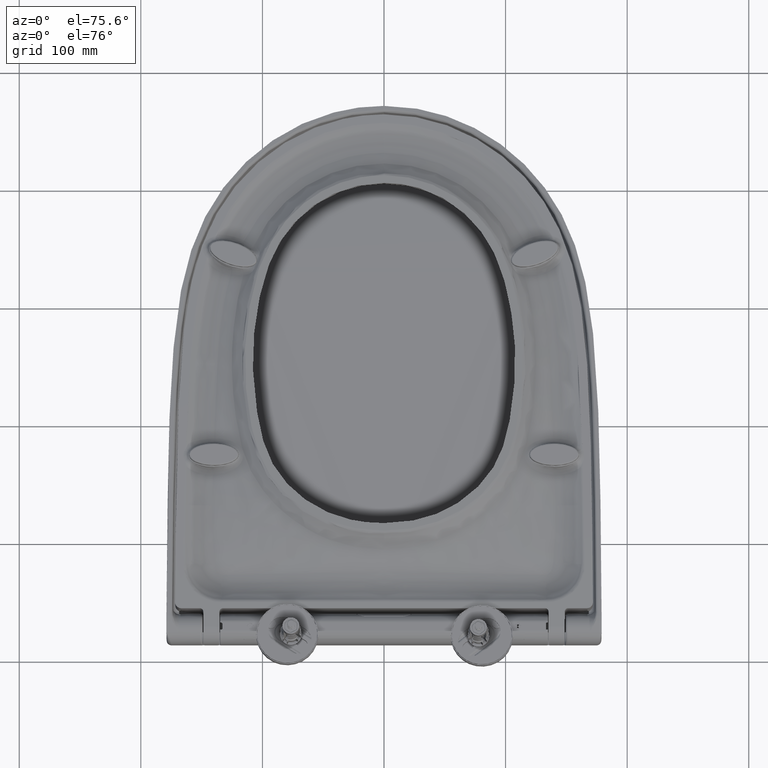
[diagram: clean part render]
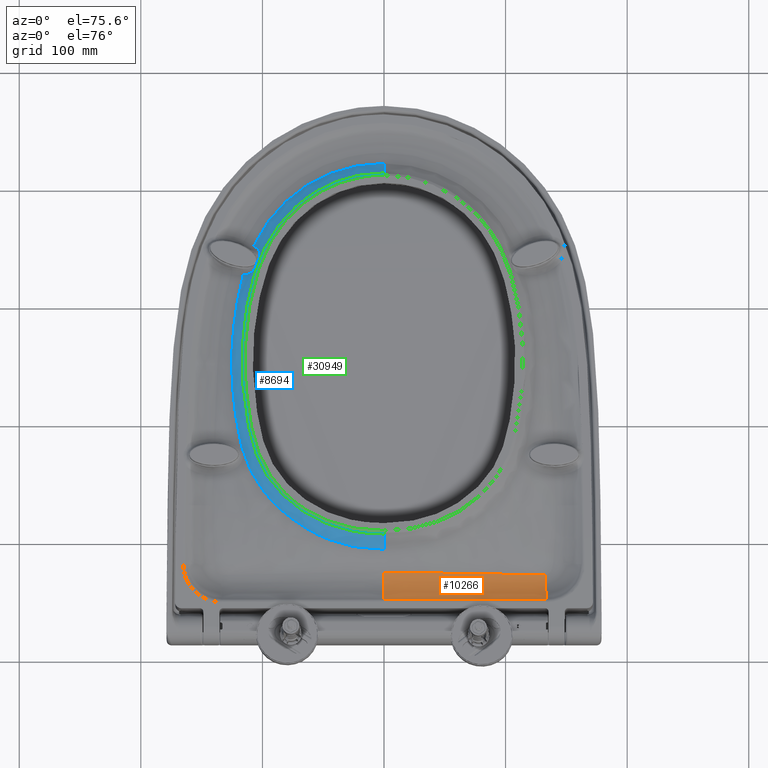
[diagram: same view with three faces highlighted in distinct colors, each labeled with its STEP entity id]
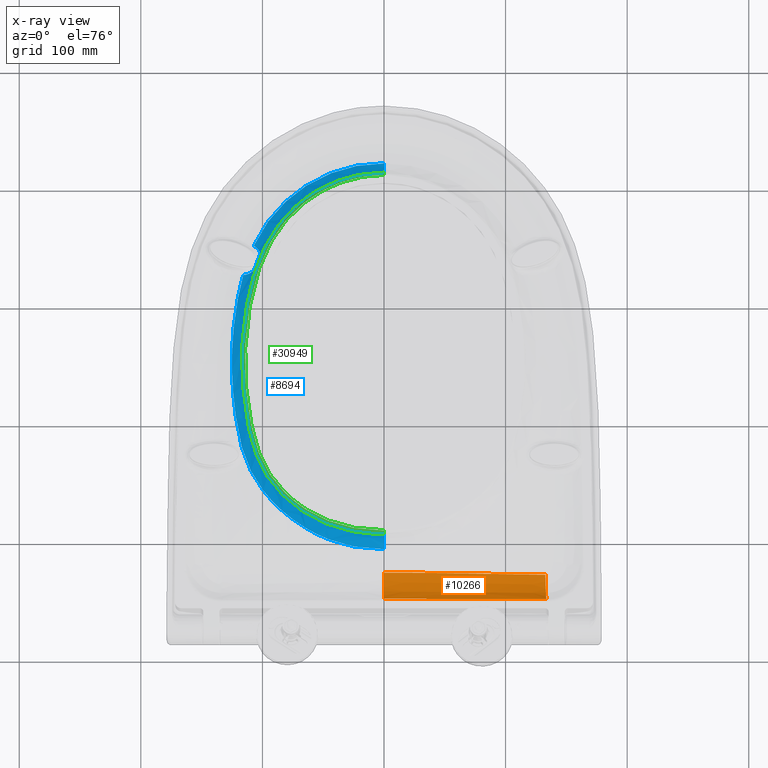
[diagram: x-ray of the same camera — body ghosted, the three highlighted faces saturated]
A machine part, auxiliary view with three faces highlighted in distinct colors.
The next image is the same camera in x-ray (body ghosted, the three faces saturated) — at least one of them is partly hidden behind the body in this view.
Their STEP definitions:

[orange] entity #10266 — the highlighted face is a freeform B-spline surface patch.
#812=CARTESIAN_POINT('',(2.417216545242E-8,4.366977064898E1,-1.001739200835E1));
#836=CARTESIAN_POINT('',(1.327096024560E2,6.621523955433E1,-1.812332546921E1));
#837=CARTESIAN_POINT('',(1.327909277935E2,6.231080872720E1,-1.877834804875E1));
#838=CARTESIAN_POINT('',(1.330379799996E2,5.364488703244E1,-1.818906890424E1));
#839=CARTESIAN_POINT('',(1.333866938321E2,4.643061278477E1,-1.335800445799E1));
#840=CARTESIAN_POINT('',(1.335527902483E2,4.374438792246E1,-1.045348023852E1));
#842=CARTESIAN_POINT('',(1.335527902483E2,4.374438792246E1,-1.045348023852E1));
#843=CARTESIAN_POINT('',(1.287663418016E2,4.374450507090E1,-1.043275506357E1));
#844=CARTESIAN_POINT('',(1.196680104225E2,4.373939392818E1,-1.038453366609E1));
#845=CARTESIAN_POINT('',(1.075564066338E2,4.373419516155E1,-1.032858853522E1));
#846=CARTESIAN_POINT('',(9.689682572027E1,4.372805334382E1,-1.028259855953E1));
#847=CARTESIAN_POINT('',(8.381686362832E1,4.371947178547E1,-1.022727496392E1));
#848=CARTESIAN_POINT('',(7.519387639517E1,4.371295941743E1,-1.019247466243E1));
#849=CARTESIAN_POINT('',(6.367752283822E1,4.370411788965E1,-1.014837092404E1));
#850=CARTESIAN_POINT('',(4.814227160541E1,4.369215360374E1,-1.009745481572E1));
#851=CARTESIAN_POINT('',(3.712305383023E1,4.368371948866E1,-1.006671260455E1));
#852=CARTESIAN_POINT('',(2.114648559173E1,4.367544912896E1,-1.003296312929E1));
#853=CARTESIAN_POINT('',(7.561554112198E0,4.366719702118E1,-1.001536331827E1));
#854=CARTESIAN_POINT('',(2.417216545242E-8,4.366977064898E1,-1.001739200835E1));
#856=CARTESIAN_POINT('',(-2.468282066548E-5,6.698804205712E1,
-1.411366401855E1));
#857=CARTESIAN_POINT('',(-2.546495254876E-5,6.324343762625E1,
-1.535199009312E1));
#858=CARTESIAN_POINT('',(1.235957097531E-5,5.462512358353E1,-1.609663281510E1));
#859=CARTESIAN_POINT('',(1.572893414695E-6,4.677103926807E1,-1.246008828732E1));
#860=CARTESIAN_POINT('',(2.417216545242E-8,4.366977064898E1,-1.001739200835E1));
#1409=CARTESIAN_POINT('',(1.327096024560E2,6.621523955433E1,-1.812332546921E1));
#1410=CARTESIAN_POINT('',(1.214857962861E2,6.623120269778E1,-1.770258746020E1));
#1411=CARTESIAN_POINT('',(9.944762945877E1,6.639116971632E1,-1.677256818158E1));
#1412=CARTESIAN_POINT('',(5.499605128650E1,6.686106032563E1,-1.506892653307E1));
#1413=CARTESIAN_POINT('',(2.192104386029E1,6.698916772799E1,-1.411328580399E1));
#1414=CARTESIAN_POINT('',(-2.468282066548E-5,6.698804205712E1,
-1.411366401855E1));
#6796=VERTEX_POINT('',#812);
#6798=VERTEX_POINT('',#842);
#6799=VERTEX_POINT('',#856);
#6800=VERTEX_POINT('',#1409);
#10180=CARTESIAN_POINT('',(-1.335743084892E0,4.292575941513E1,
-9.407842228352E0));
#10181=CARTESIAN_POINT('',(-8.767328095644E-1,4.292572385712E1,
-9.407798754261E0));
#10182=CARTESIAN_POINT('',(2.384968734436E0,4.292567329291E1,
-9.407709514512E0));
#10183=CARTESIAN_POINT('',(8.533164043122E0,4.292818911341E1,
-9.410413531607E0));
#10184=CARTESIAN_POINT('',(1.719405553315E1,4.293671693548E1,
-9.419959551152E0));
#10185=CARTESIAN_POINT('',(2.604601955517E1,4.294732074969E1,
-9.432810681381E0));
#10186=CARTESIAN_POINT('',(3.477672179939E1,4.295701051290E1,
-9.446275611948E0));
#10187=CARTESIAN_POINT('',(4.317688027256E1,4.296407140240E1,
-9.458476753631E0));
#10188=CARTESIAN_POINT('',(5.123871931731E1,4.296686164355E1,
-9.467678529045E0));
#10189=CARTESIAN_POINT('',(5.931961724228E1,4.297249339933E1,
-9.480379972514E0));
#10190=CARTESIAN_POINT('',(6.787652958192E1,4.296956642382E1,
-9.486367347661E0));
#10191=CARTESIAN_POINT('',(7.730530895683E1,4.296844200111E1,
-9.495779623765E0));
#10192=CARTESIAN_POINT('',(8.768851742408E1,4.297218067584E1,
-9.511924373750E0));
#10193=CARTESIAN_POINT('',(9.856372349154E1,4.299628900584E1,
-9.551184692194E0));
#10194=CARTESIAN_POINT('',(1.099476552593E2,4.301963649946E1,
-9.592580867083E0));
#10195=CARTESIAN_POINT('',(1.216029176274E2,4.307633754986E1,
-9.675704310667E0));
#10196=CARTESIAN_POINT('',(1.300445424114E2,4.314007294176E1,
-9.767552786434E0));
#10197=CARTESIAN_POINT('',(1.344666592149E2,4.317399059638E1,
-9.817131557743E0));
#10198=CARTESIAN_POINT('',(1.348977653451E2,4.317729077932E1,
-9.821975044264E0));
#10199=CARTESIAN_POINT('',(-1.323872645253E0,4.998307764152E1,
-1.542088242067E1));
#10200=CARTESIAN_POINT('',(-8.689696204571E-1,4.998317429672E1,
-1.542069179483E1));
#10201=CARTESIAN_POINT('',(2.363737153364E0,4.998359815842E1,
-1.542007230203E1));
#10202=CARTESIAN_POINT('',(8.460083509285E0,4.998083651648E1,
-1.542863216937E1));
#10203=CARTESIAN_POINT('',(1.705941174667E1,4.996836737316E1,
-1.546164283072E1));
#10204=CARTESIAN_POINT('',(2.585815523117E1,4.994494982051E1,
-1.551248389494E1));
#10205=CARTESIAN_POINT('',(3.454607249044E1,4.990930407580E1,
-1.557630818425E1));
#10206=CARTESIAN_POINT('',(4.290824773182E1,4.986314845045E1,
-1.564684365754E1));
#10207=CARTESIAN_POINT('',(5.093803015550E1,4.980530991132E1,
-1.572153228523E1));
#10208=CARTESIAN_POINT('',(5.899935643772E1,4.974568885475E1,
-1.580393913672E1));
#10209=CARTESIAN_POINT('',(6.752968608434E1,4.966436022530E1,
-1.589160722423E1));
#10210=CARTESIAN_POINT('',(7.693729632722E1,4.957031109354E1,
-1.599573618350E1));
#10211=CARTESIAN_POINT('',(8.730570369871E1,4.946704001857E1,
-1.611804159971E1));
#10212=CARTESIAN_POINT('',(9.818724251096E1,4.938375505860E1,
-1.626152549085E1));
#10213=CARTESIAN_POINT('',(1.095476058802E2,4.929184385478E1,
-1.640951702846E1));
#10214=CARTESIAN_POINT('',(1.211714279095E2,4.923103741938E1,
-1.659698648973E1));
#10215=CARTESIAN_POINT('',(1.296286670435E2,4.921710759593E1,
-1.675768598826E1));
#10216=CARTESIAN_POINT('',(1.340832363536E2,4.921697659658E1,
-1.683837731199E1));
#10217=CARTESIAN_POINT('',(1.345177515589E2,4.921702652816E1,
-1.684620261609E1));
#10218=CARTESIAN_POINT('',(-1.313733561503E0,5.911179548727E1,
-1.704228361572E1));
#10219=CARTESIAN_POINT('',(-8.623387295740E-1,5.911193006301E1,
-1.704190115715E1));
#10220=CARTESIAN_POINT('',(2.345602258607E0,5.911248907456E1,
-1.704059100581E1));
#10221=CARTESIAN_POINT('',(8.397663057204E0,5.910820993061E1,
-1.705678732747E1));
#10222=CARTESIAN_POINT('',(1.694444459417E1,5.908972655597E1,
-1.712039362806E1));
#10223=CARTESIAN_POINT('',(2.569781063585E1,5.905648254873E1,
-1.722086420083E1));
#10224=CARTESIAN_POINT('',(3.434928878141E1,5.900751922720E1,
-1.735070274405E1));
#10225=CARTESIAN_POINT('',(4.267913353784E1,5.894530136586E1,
-1.749810669454E1));
#10226=CARTESIAN_POINT('',(5.068162684415E1,5.886861758960E1,
-1.765960176873E1));
#10227=CARTESIAN_POINT('',(5.872634802877E1,5.878818043226E1,
-1.783492209606E1));
#10228=CARTESIAN_POINT('',(6.723403283016E1,5.868085752181E1,
-1.803238665486E1));
#10229=CARTESIAN_POINT('',(7.662364051149E1,5.855483782600E1,
-1.826496154695E1));
#10230=CARTESIAN_POINT('',(8.697954474504E1,5.841316136446E1,
-1.853279994798E1));
#10231=CARTESIAN_POINT('',(9.786682254281E1,5.828984292648E1,
-1.882063961379E1));
#10232=CARTESIAN_POINT('',(1.092074859136E2,5.815277966950E1,
-1.911860841824E1));
#10233=CARTESIAN_POINT('',(1.208054526905E2,5.804396802628E1,
-1.945514018886E1));
#10234=CARTESIAN_POINT('',(1.292769222475E2,5.799757607833E1,
-1.971482546531E1));
#10235=CARTESIAN_POINT('',(1.337593724451E2,5.798326924206E1,
-1.984001380935E1));
#10236=CARTESIAN_POINT('',(1.341968121131E2,5.798196840183E1,
-1.985210040016E1));
#10237=CARTESIAN_POINT('',(-1.308106709427E0,6.780815314319E1,
-1.382733942482E1));
#10238=CARTESIAN_POINT('',(-8.586588105092E-1,6.780822094623E1,
-1.382677306702E1));
#10239=CARTESIAN_POINT('',(2.335537960126E0,6.780853876363E1,
-1.382480128060E1));
#10240=CARTESIAN_POINT('',(8.363022924555E0,6.780691828777E1,
-1.384832018825E1));
#10241=CARTESIAN_POINT('',(1.688068644861E1,6.779905295648E1,
-1.394126157115E1));
#10242=CARTESIAN_POINT('',(2.560896394449E1,6.778287253699E1,
-1.408938919838E1));
#10243=CARTESIAN_POINT('',(3.424034310853E1,6.775626222001E1,
-1.428279097060E1));
#10244=CARTESIAN_POINT('',(4.255237750233E1,6.771954183738E1,
-1.450451460465E1));
#10245=CARTESIAN_POINT('',(5.053983386002E1,6.767096510477E1,
-1.475032706474E1));
#10246=CARTESIAN_POINT('',(5.857547082026E1,6.761985785032E1,
-1.501628528838E1));
#10247=CARTESIAN_POINT('',(6.707065949130E1,6.754607755832E1,
-1.532154788210E1));
#10248=CARTESIAN_POINT('',(7.645036879613E1,6.745781010240E1,
-1.568106871968E1));
#10249=CARTESIAN_POINT('',(8.679949712130E1,6.735686617370E1,
-1.609389667206E1));
#10250=CARTESIAN_POINT('',(9.769034609720E1,6.727185416734E1,
-1.652663143927E1));
#10251=CARTESIAN_POINT('',(1.090205810452E2,6.717212948552E1,
-1.697682471652E1));
#10252=CARTESIAN_POINT('',(1.206053690509E2,6.709798143944E1,
-1.746625133807E1));
#10253=CARTESIAN_POINT('',(1.290857820844E2,6.707323393847E1,
-1.782790803240E1));
#10254=CARTESIAN_POINT('',(1.335838945790E2,6.706851213008E1,
-1.799877353834E1));
#10255=CARTESIAN_POINT('',(1.340229719966E2,6.706813047767E1,
-1.801523212958E1));
#10256=(BOUNDED_SURFACE()B_SPLINE_SURFACE(3,3,((#10180,#10181,#10182,#10183,
#10184,#10185,#10186,#10187,#10188,#10189,#10190,#10191,#10192,#10193,#10194,
#10195,#10196,#10197,#10198),(#10199,#10200,#10201,#10202,#10203,#10204,#10205,
#10206,#10207,#10208,#10209,#10210,#10211,#10212,#10213,#10214,#10215,#10216,
#10217),(#10218,#10219,#10220,#10221,#10222,#10223,#10224,#10225,#10226,#10227,
#10228,#10229,#10230,#10231,#10232,#10233,#10234,#10235,#10236),(#10237,#10238,
#10239,#10240,#10241,#10242,#10243,#10244,#10245,#10246,#10247,#10248,#10249,
#10250,#10251,#10252,#10253,#10254,#10255)),.UNSPECIFIED.,.F.,.F.,.F.)B_SPLINE_SURFACE_WITH_KNOTS((4,4),(4,1,1,1,1,1,1,1,1,1,1,1,1,1,1,1,4),(0.E0,1.E0),(
4.739081214178E-1,4.792508905358E-1,5.118751320523E-1,5.454983590547E-1,
5.802015746335E-1,6.151430767574E-1,6.474425437510E-1,6.783205674546E-1,
7.093541201870E-1,7.419891333280E-1,7.783900959881E-1,8.196965742219E-1,
8.635818830129E-1,9.059410380169E-1,9.529606969228E-1,1.E0,1.005083243103E0),
.UNSPECIFIED.)GEOMETRIC_REPRESENTATION_ITEM()RATIONAL_B_SPLINE_SURFACE(((
1.073615935890E0,1.073615935890E0,1.073615935890E0,1.073615935890E0,
1.073615935890E0,1.073615935890E0,1.073615935890E0,1.073615935890E0,
1.073615935890E0,1.073615935890E0,1.073615935890E0,1.073615935890E0,
1.073615935890E0,1.073615935890E0,1.073615935890E0,1.073615935890E0,
1.073615935890E0,1.073615935890E0,1.073615935890E0),(9.754613547032E-1,
9.754613547032E-1,9.754613547032E-1,9.754613547032E-1,9.754613547032E-1,
9.754613547032E-1,9.754613547032E-1,9.754613547032E-1,9.754613547032E-1,
9.754613547032E-1,9.754613547032E-1,9.754613547032E-1,9.754613547032E-1,
9.754613547032E-1,9.754613547032E-1,9.754613547032E-1,9.754613547032E-1,
9.754613547032E-1,9.754613547032E-1),(9.754613547032E-1,9.754613547032E-1,
9.754613547032E-1,9.754613547032E-1,9.754613547032E-1,9.754613547032E-1,
9.754613547032E-1,9.754613547032E-1,9.754613547032E-1,9.754613547032E-1,
9.754613547032E-1,9.754613547032E-1,9.754613547032E-1,9.754613547032E-1,
9.754613547032E-1,9.754613547032E-1,9.754613547032E-1,9.754613547032E-1,
9.754613547032E-1),(1.073615935890E0,1.073615935890E0,1.073615935890E0,
1.073615935890E0,1.073615935890E0,1.073615935890E0,1.073615935890E0,
1.073615935890E0,1.073615935890E0,1.073615935890E0,1.073615935890E0,
1.073615935890E0,1.073615935890E0,1.073615935890E0,1.073615935890E0,
1.073615935890E0,1.073615935890E0,1.073615935890E0,1.073615935890E0)))REPRESENTATION_ITEM('')SURFACE());
#10258=ORIENTED_EDGE('',*,*,#10257,.F.);
#10260=ORIENTED_EDGE('',*,*,#10259,.F.);
#10262=ORIENTED_EDGE('',*,*,#10261,.T.);
#10263=ORIENTED_EDGE('',*,*,#10172,.T.);
#10264=EDGE_LOOP('',(#10258,#10260,#10262,#10263));
#10265=FACE_OUTER_BOUND('',#10264,.F.);
#841=B_SPLINE_CURVE_WITH_KNOTS('',3,(#836,#837,#838,#839,#840),.UNSPECIFIED.,
.F.,.F.,(4,1,4),(0.E0,5.E-1,1.E0),.UNSPECIFIED.);
#855=B_SPLINE_CURVE_WITH_KNOTS('',3,(#842,#843,#844,#845,#846,#847,#848,#849,
#850,#851,#852,#853,#854),.UNSPECIFIED.,.F.,.F.,(4,1,1,1,1,1,1,1,1,1,4),(0.E0,
1.E-1,2.E-1,3.E-1,4.E-1,5.E-1,6.E-1,7.E-1,8.E-1,9.E-1,1.E0),.UNSPECIFIED.);
#861=B_SPLINE_CURVE_WITH_KNOTS('',3,(#856,#857,#858,#859,#860),.UNSPECIFIED.,
.F.,.F.,(4,1,4),(0.E0,5.E-1,1.E0),.UNSPECIFIED.);
#1415=B_SPLINE_CURVE_WITH_KNOTS('',3,(#1409,#1410,#1411,#1412,#1413,#1414),
.UNSPECIFIED.,.F.,.F.,(4,1,1,4),(0.E0,2.5E-1,5.E-1,1.E0),.UNSPECIFIED.);
#10172=EDGE_CURVE('',#6798,#6796,#855,.T.);
#10257=EDGE_CURVE('',#6799,#6796,#861,.T.);
#10259=EDGE_CURVE('',#6800,#6799,#1415,.T.);
#10261=EDGE_CURVE('',#6800,#6798,#841,.T.);
#10266=ADVANCED_FACE('',(#10265),#10256,.F.);

[blue] entity #8694 — the highlighted face is a freeform B-spline surface patch.
#222=CARTESIAN_POINT('',(-2.916717064148E-7,4.132085906937E2,
-9.074664898469E0));
#274=CARTESIAN_POINT('',(-2.916717064148E-7,4.132085906937E2,
-9.074664898469E0));
#275=CARTESIAN_POINT('',(1.812819184979E-4,4.094659635548E2,-7.924070988837E0));
#276=CARTESIAN_POINT('',(-1.415524741041E-4,4.059846721833E2,
-5.549942410565E0));
#277=CARTESIAN_POINT('',(-2.176898537574E-7,4.035623019143E2,
-2.567851678278E0));
#279=CARTESIAN_POINT('',(-2.176898537574E-7,4.035623019143E2,
-2.567851678278E0));
#280=CARTESIAN_POINT('',(-6.260311142336E0,4.035630219707E2,-2.568636701851E0));
#281=CARTESIAN_POINT('',(-1.797580226096E1,4.024814088689E2,-2.560762947287E0));
#282=CARTESIAN_POINT('',(-3.225288820286E1,3.989149085464E2,-2.533389329249E0));
#283=CARTESIAN_POINT('',(-4.478129704337E1,3.939994481761E2,-2.494310774374E0));
#284=CARTESIAN_POINT('',(-5.931505574082E1,3.861518980027E2,-2.422773537398E0));
#285=CARTESIAN_POINT('',(-7.547361425712E1,3.726346115062E2,-2.277666186187E0));
#286=CARTESIAN_POINT('',(-8.412128496148E1,3.625902053012E2,-2.158289494204E0));
#287=CARTESIAN_POINT('',(-9.320676581301E1,3.497161624878E2,-2.001440620711E0));
#288=CARTESIAN_POINT('',(-1.012976166787E2,3.337030026662E2,-1.787032434118E0));
#289=CARTESIAN_POINT('',(-1.079051997749E2,3.135641181514E2,-1.504882239711E0));
#290=CARTESIAN_POINT('',(-1.110652405662E2,2.993362218970E2,-1.317914285683E0));
#291=CARTESIAN_POINT('',(-1.135283172921E2,2.855687442066E2,-1.150923905101E0));
#292=CARTESIAN_POINT('',(-1.150679058957E2,2.739667812419E2,-1.019818789351E0));
#293=CARTESIAN_POINT('',(-1.161750062158E2,2.616965853437E2,
-8.870923067233E-1));
#294=CARTESIAN_POINT('',(-1.166050308099E2,2.531699988062E2,
-7.966591067243E-1));
#295=CARTESIAN_POINT('',(-1.168603215214E2,2.423126740080E2,
-6.822212691464E-1));
#296=CARTESIAN_POINT('',(-1.164225480623E2,2.280823768184E2,
-5.319600761568E-1));
#297=CARTESIAN_POINT('',(-1.156159139190E2,2.175534837711E2,
-4.196618164056E-1));
#298=CARTESIAN_POINT('',(-1.141529022459E2,2.042379597149E2,
-2.811426181458E-1));
#299=CARTESIAN_POINT('',(-1.117373578073E2,1.887611910503E2,
-1.241083381692E-1));
#300=CARTESIAN_POINT('',(-1.085227793077E2,1.734537600808E2,3.174808795476E-2));
#301=CARTESIAN_POINT('',(-1.020582563125E2,1.552211240194E2,2.492604590378E-1));
#302=CARTESIAN_POINT('',(-9.398183976138E1,1.417721311021E2,4.169128926355E-1));
#303=CARTESIAN_POINT('',(-8.508462562701E1,1.307966470024E2,5.266730362366E-1));
#304=CARTESIAN_POINT('',(-7.406443151667E1,1.204884455306E2,6.049090768599E-1));
#305=CARTESIAN_POINT('',(-6.172804991084E1,1.118541941568E2,6.368952156063E-1));
#306=CARTESIAN_POINT('',(-4.910906746244E1,1.053369314972E2,6.201928913539E-1));
#307=CARTESIAN_POINT('',(-3.555196656190E1,1.003963421435E2,5.744893460399E-1));
#308=CARTESIAN_POINT('',(-1.839424882085E1,9.684477881473E1,5.383270259640E-1));
#309=CARTESIAN_POINT('',(-6.310436452498E0,9.611049145119E1,5.336215818179E-1));
#310=CARTESIAN_POINT('',(1.041249307352E-5,9.611053455046E1,5.338335712898E-1));
#312=CARTESIAN_POINT('',(1.041249307352E-5,9.611053455046E1,5.338335712898E-1));
#313=CARTESIAN_POINT('',(-2.024024805425E-5,9.375238590146E1,
-3.423881079919E0));
#314=CARTESIAN_POINT('',(-3.881243044447E-6,8.973762794048E1,
-6.671898978062E0));
#315=CARTESIAN_POINT('',(1.002663319743E-5,8.539212841363E1,-8.155773088367E0));
#317=CARTESIAN_POINT('',(1.002663319743E-5,8.539212841363E1,-8.155773088367E0));
#318=CARTESIAN_POINT('',(-6.253497556747E0,8.537600579761E1,-8.161327883865E0));
#319=CARTESIAN_POINT('',(-1.851197684509E1,8.618202155851E1,-8.085457879992E0));
#320=CARTESIAN_POINT('',(-3.442557136341E1,8.933697418830E1,-7.673866696232E0));
#321=CARTESIAN_POINT('',(-5.121039725122E1,9.534649181171E1,-6.882130846933E0));
#322=CARTESIAN_POINT('',(-6.698614979801E1,1.039858455367E2,-6.122607931770E0));
#323=CARTESIAN_POINT('',(-8.166486552448E1,1.149717649028E2,-5.748373903824E0));
#324=CARTESIAN_POINT('',(-9.341009126340E1,1.265847423304E2,-5.630011407411E0));
#325=CARTESIAN_POINT('',(-1.032750193026E2,1.395676395672E2,-5.736354926166E0));
#326=CARTESIAN_POINT('',(-1.096861256348E2,1.509085840625E2,-5.965201318173E0));
#327=CARTESIAN_POINT('',(-1.149551280602E2,1.641109945716E2,-6.180065600612E0));
#328=CARTESIAN_POINT('',(-1.180355990950E2,1.751955650199E2,-6.258492898952E0));
#329=CARTESIAN_POINT('',(-1.209425619085E2,1.901704746298E2,-6.277232098628E0));
#330=CARTESIAN_POINT('',(-1.227835998197E2,2.035744918181E2,-6.265086608867E0));
#331=CARTESIAN_POINT('',(-1.246109561229E2,2.221059746724E2,-6.324667818065E0));
#332=CARTESIAN_POINT('',(-1.253239823189E2,2.393926463181E2,-6.423930119592E0));
#333=CARTESIAN_POINT('',(-1.249563147612E2,2.590166486797E2,-6.557428091082E0));
#334=CARTESIAN_POINT('',(-1.231785666218E2,2.796757129294E2,-6.772291593413E0));
#335=CARTESIAN_POINT('',(-1.198951581076E2,3.009535053156E2,-7.160760811789E0));
#336=CARTESIAN_POINT('',(-1.172898875934E2,3.126055576077E2,-7.493386557854E0));
#337=CARTESIAN_POINT('',(-1.158813517845E2,3.180434377466E2,-7.664333512815E0));
#339=CARTESIAN_POINT('',(-1.059879568632E2,3.234278746966E2,-3.052982828887E0));
#340=CARTESIAN_POINT('',(-1.054662828563E2,3.248722052223E2,-3.037987208368E0));
#341=CARTESIAN_POINT('',(-1.049255322198E2,3.263086926084E2,-3.022948694034E0));
#342=CARTESIAN_POINT('',(-1.043647003366E2,3.277362417849E2,-3.008010374291E0));
#344=CARTESIAN_POINT('',(-1.043647003366E2,3.277362417849E2,-3.008010374291E0));
#345=CARTESIAN_POINT('',(-1.038048853644E2,3.291611669592E2,-2.993100115163E0));
#346=CARTESIAN_POINT('',(-1.032250077487E2,3.305772225190E2,-2.978301553198E0));
#347=CARTESIAN_POINT('',(-1.026240916355E2,3.319834673877E2,-2.963753483752E0));
#349=CARTESIAN_POINT('',(-1.071850043480E2,3.430656150522E2,-8.433398151304E0));
#350=CARTESIAN_POINT('',(-1.046200806446E2,3.487526359418E2,-8.594397033569E0));
#351=CARTESIAN_POINT('',(-9.881810876652E1,3.594445121135E2,-8.856208452723E0));
#352=CARTESIAN_POINT('',(-8.898324057341E1,3.726367380206E2,-9.089072862234E0));
#353=CARTESIAN_POINT('',(-7.738201150570E1,3.845967065421E2,-9.247587619353E0));
#354=CARTESIAN_POINT('',(-6.374826497753E1,3.949904187298E2,-9.292344458698E0));
#355=CARTESIAN_POINT('',(-4.888086062766E1,4.031496548967E2,-9.251824102094E0));
#356=CARTESIAN_POINT('',(-3.323694686846E1,4.089607722393E2,-9.170916690719E0));
#357=CARTESIAN_POINT('',(-1.713580614937E1,4.123991963799E2,-9.093836732517E0));
#358=CARTESIAN_POINT('',(-5.755842529389E0,4.132130407127E2,-9.076199001113E0));
#359=CARTESIAN_POINT('',(-2.916717064148E-7,4.132085906937E2,
-9.074664898469E0));
#417=CARTESIAN_POINT('',(1.002663319743E-5,8.539212841363E1,-8.155773088367E0));
#1171=CARTESIAN_POINT('',(-1.071850043480E2,3.430656150522E2,
-8.433398151304E0));
#1172=CARTESIAN_POINT('',(-1.071097024499E2,3.430089096512E2,
-8.404364212473E0));
#1173=CARTESIAN_POINT('',(-1.069596167791E2,3.428949303739E2,
-8.344937798126E0));
#1174=CARTESIAN_POINT('',(-1.067362614276E2,3.427223924322E2,
-8.251594227706E0));
#1175=CARTESIAN_POINT('',(-1.065885768787E2,3.426063302679E2,
-8.186553587099E0));
#1176=CARTESIAN_POINT('',(-1.065150508193E2,3.425480485219E2,
-8.153368082980E0));
#1184=CARTESIAN_POINT('',(-1.065150508193E2,3.425480485219E2,
-8.153368082980E0));
#1185=CARTESIAN_POINT('',(-1.055984206737E2,3.418104565407E2,
-7.737663428594E0));
#1186=CARTESIAN_POINT('',(-1.040855465159E2,3.403766127436E2,
-6.778104838783E0));
#1187=CARTESIAN_POINT('',(-1.028055104113E2,3.384546585217E2,
-5.453538682191E0));
#1188=CARTESIAN_POINT('',(-1.021820192767E2,3.366948163705E2,
-4.387788951659E0));
#1189=CARTESIAN_POINT('',(-1.019806600433E2,3.353927886552E2,
-3.726329681853E0));
#1190=CARTESIAN_POINT('',(-1.020797378452E2,3.335331047588E2,
-3.070884544423E0));
#1191=CARTESIAN_POINT('',(-1.024111288284E2,3.324837407364E2,
-2.959380582128E0));
#1192=CARTESIAN_POINT('',(-1.026240916355E2,3.319834673877E2,
-2.963753483752E0));
#1216=CARTESIAN_POINT('',(-1.059879568632E2,3.234278746966E2,
-3.052982828887E0));
#1217=CARTESIAN_POINT('',(-1.061822137893E2,3.229000069269E2,
-3.061826050387E0));
#1218=CARTESIAN_POINT('',(-1.066907320583E2,3.218777361307E2,
-3.210648953039E0));
#1219=CARTESIAN_POINT('',(-1.077760408094E2,3.205669492845E2,
-3.779571037054E0));
#1220=CARTESIAN_POINT('',(-1.091216883909E2,3.194975151562E2,
-4.573183989738E0));
#1221=CARTESIAN_POINT('',(-1.109379950914E2,3.186620174221E2,
-5.599498396735E0));
#1222=CARTESIAN_POINT('',(-1.127248264408E2,3.181921426172E2,
-6.505023737850E0));
#1223=CARTESIAN_POINT('',(-1.147328876085E2,3.180346830153E2,
-7.317290260057E0));
#1224=CARTESIAN_POINT('',(-1.158813517845E2,3.180434377466E2,
-7.664333512815E0));
#6554=VERTEX_POINT('',#222);
#6556=VERTEX_POINT('',#417);
#6703=VERTEX_POINT('',#277);
#6704=VERTEX_POINT('',#312);
#6705=VERTEX_POINT('',#337);
#6706=VERTEX_POINT('',#1216);
#6707=VERTEX_POINT('',#342);
#6708=VERTEX_POINT('',#347);
#6709=VERTEX_POINT('',#1184);
#6710=VERTEX_POINT('',#1171);
#8524=CARTESIAN_POINT('',(4.771584035164E0,4.165037456343E2,-9.803387428955E0));
#8525=CARTESIAN_POINT('',(1.343322708854E0,4.166365360820E2,-9.801258705001E0));
#8526=CARTESIAN_POINT('',(-6.461891229813E0,4.166159738390E2,
-9.802469871035E0));
#8527=CARTESIAN_POINT('',(-1.847996815331E1,4.154081604119E2,
-9.818101219347E0));
#8528=CARTESIAN_POINT('',(-3.109419564639E1,4.127138137360E2,
-9.853042485696E0));
#8529=CARTESIAN_POINT('',(-4.326212508766E1,4.086473886537E2,
-9.889869580961E0));
#8530=CARTESIAN_POINT('',(-5.493022573531E1,4.032702454334E2,
-9.914677337900E0));
#8531=CARTESIAN_POINT('',(-6.600377665449E1,3.966482064442E2,
-9.912808550548E0));
#8532=CARTESIAN_POINT('',(-7.632408576514E1,3.888851346550E2,
-9.872349780006E0));
#8533=CARTESIAN_POINT('',(-8.576936988581E1,3.800938585206E2,
-9.785613795259E0));
#8534=CARTESIAN_POINT('',(-9.432566750475E1,3.703480772518E2,
-9.653589267915E0));
#8535=CARTESIAN_POINT('',(-1.020348751074E2,3.595994080398E2,
-9.482531154689E0));
#8536=CARTESIAN_POINT('',(-1.089821558966E2,3.474507172595E2,
-9.239626491201E0));
#8537=CARTESIAN_POINT('',(-1.152132118879E2,3.334348298927E2,
-8.885578561760E0));
#8538=CARTESIAN_POINT('',(-1.206104564579E2,3.171227177261E2,
-8.444266358373E0));
#8539=CARTESIAN_POINT('',(-1.250239473365E2,2.982483356403E2,
-8.010223167572E0));
#8540=CARTESIAN_POINT('',(-1.283548400605E2,2.771594849450E2,
-7.735842355917E0));
#8541=CARTESIAN_POINT('',(-1.301416156680E2,2.546997324759E2,
-7.592779475935E0));
#8542=CARTESIAN_POINT('',(-1.300712182715E2,2.327250759233E2,
-7.469759244540E0));
#8543=CARTESIAN_POINT('',(-1.285221696742E2,2.127400216796E2,
-7.344051948736E0));
#8544=CARTESIAN_POINT('',(-1.261194504731E2,1.951416309519E2,
-7.265807328354E0));
#8545=CARTESIAN_POINT('',(-1.232511975942E2,1.795011918513E2,
-7.228309330765E0));
#8546=CARTESIAN_POINT('',(-1.196146175967E2,1.656097125607E2,
-7.123764839728E0));
#8547=CARTESIAN_POINT('',(-1.151688687654E2,1.533996276103E2,
-6.948990709465E0));
#8548=CARTESIAN_POINT('',(-1.096887213510E2,1.422827333733E2,
-6.752781218699E0));
#8549=CARTESIAN_POINT('',(-1.029318114757E2,1.319233474513E2,
-6.612055010778E0));
#8550=CARTESIAN_POINT('',(-9.467281812055E1,1.220308815102E2,
-6.591212875273E0));
#8551=CARTESIAN_POINT('',(-8.501771448532E1,1.128855900731E2,
-6.679308436975E0));
#8552=CARTESIAN_POINT('',(-7.429312213587E1,1.048442620195E2,
-6.874749879005E0));
#8553=CARTESIAN_POINT('',(-6.291190214189E1,9.819822456406E1,
-7.185175614161E0));
#8554=CARTESIAN_POINT('',(-5.114129155310E1,9.301679832352E1,
-7.595468682459E0));
#8555=CARTESIAN_POINT('',(-3.902116694777E1,8.917049554633E1,
-7.978468593906E0));
#8556=CARTESIAN_POINT('',(-2.642234204393E1,8.647926004184E1,
-8.253720716018E0));
#8557=CARTESIAN_POINT('',(-1.287395390933E1,8.484091123186E1,
-8.406247920947E0));
#8558=CARTESIAN_POINT('',(-2.398662953695E0,8.449368725555E1,
-8.422141972902E0));
#8559=CARTESIAN_POINT('',(3.600992156639E0,8.459636708507E1,-8.417155416217E0));
#8560=CARTESIAN_POINT('',(4.704043127914E0,8.462516853947E1,-8.415939109328E0));
#8561=CARTESIAN_POINT('',(4.565174224035E0,4.109991935564E2,-9.111514575641E0));
#8562=CARTESIAN_POINT('',(1.283847212161E0,4.111263694631E2,-9.110728374384E0));
#8563=CARTESIAN_POINT('',(-6.178401281125E0,4.111064464118E2,
-9.111486770263E0));
#8564=CARTESIAN_POINT('',(-1.765920365127E1,4.099518654076E2,
-9.116014539635E0));
#8565=CARTESIAN_POINT('',(-2.968611744786E1,4.073813901695E2,
-9.126316395239E0));
#8566=CARTESIAN_POINT('',(-4.127308621196E1,4.035079862682E2,
-9.132249036507E0));
#8567=CARTESIAN_POINT('',(-5.240101394834E1,3.983793862330E2,
-9.125548448234E0));
#8568=CARTESIAN_POINT('',(-6.295929670275E1,3.920644714690E2,
-9.097736170973E0));
#8569=CARTESIAN_POINT('',(-7.279870285968E1,3.846635310727E2,
-9.042127412850E0));
#8570=CARTESIAN_POINT('',(-8.181705244849E1,3.762701955326E2,
-8.954443560805E0));
#8571=CARTESIAN_POINT('',(-8.999821335339E1,3.669523420824E2,
-8.835566121665E0));
#8572=CARTESIAN_POINT('',(-9.737562323517E1,3.566670616194E2,
-8.689077224692E0));
#8573=CARTESIAN_POINT('',(-1.040198641645E2,3.450493778458E2,
-8.493685362709E0));
#8574=CARTESIAN_POINT('',(-1.100125773346E2,3.315786834521E2,
-8.222698136918E0));
#8575=CARTESIAN_POINT('',(-1.152500952442E2,3.157612542632E2,
-7.887574820664E0));
#8576=CARTESIAN_POINT('',(-1.195754501371E2,2.972722882881E2,
-7.543464951555E0));
#8577=CARTESIAN_POINT('',(-1.228597763193E2,2.764772604590E2,
-7.285436379189E0));
#8578=CARTESIAN_POINT('',(-1.246107864036E2,2.544448458726E2,
-7.102931936104E0));
#8579=CARTESIAN_POINT('',(-1.245430152490E2,2.329139792947E2,
-6.934836278641E0));
#8580=CARTESIAN_POINT('',(-1.230258398160E2,2.133001700504E2,
-6.773023268273E0));
#8581=CARTESIAN_POINT('',(-1.206566776932E2,1.959270519712E2,
-6.648813536980E0));
#8582=CARTESIAN_POINT('',(-1.178471123076E2,1.806135235326E2,
-6.559137960271E0));
#8583=CARTESIAN_POINT('',(-1.143402295090E2,1.672339902253E2,
-6.438969366099E0));
#8584=CARTESIAN_POINT('',(-1.100944540358E2,1.555828496152E2,
-6.284541767406E0));
#8585=CARTESIAN_POINT('',(-1.049128589252E2,1.450668030557E2,
-6.122636898580E0));
#8586=CARTESIAN_POINT('',(-9.848201904278E1,1.352025877240E2,
-5.996489867119E0));
#8587=CARTESIAN_POINT('',(-9.059742855903E1,1.257605225173E2,
-5.944039194626E0));
#8588=CARTESIAN_POINT('',(-8.136089269377E1,1.170141516468E2,
-5.959611857690E0));
#8589=CARTESIAN_POINT('',(-7.108967498537E1,1.093137461527E2,
-6.042943343055E0));
#8590=CARTESIAN_POINT('',(-6.018001073392E1,1.029415633908E2,
-6.198314035521E0));
#8591=CARTESIAN_POINT('',(-4.894328206481E1,9.798995786043E1,
-6.416226386397E0));
#8592=CARTESIAN_POINT('',(-3.740796379327E1,9.431913057584E1,
-6.622352910867E0));
#8593=CARTESIAN_POINT('',(-2.539065533949E1,9.173935414489E1,
-6.769113425740E0));
#8594=CARTESIAN_POINT('',(-1.241695293798E1,9.016015790183E1,
-6.848974009169E0));
#8595=CARTESIAN_POINT('',(-2.324716833461E0,8.982254959179E1,
-6.856352453804E0));
#8596=CARTESIAN_POINT('',(3.483339401343E0,8.992233166920E1,-6.853999232688E0));
#8597=CARTESIAN_POINT('',(4.552135583392E0,8.995034842993E1,-6.853442490260E0));
#8598=CARTESIAN_POINT('',(4.387173197947E0,4.062120782448E2,-6.305630077684E0));
#8599=CARTESIAN_POINT('',(1.232505146983E0,4.063339445941E2,-6.306042370554E0));
#8600=CARTESIAN_POINT('',(-5.933623840741E0,4.063146724633E2,
-6.306311523030E0));
#8601=CARTESIAN_POINT('',(-1.695184004725E1,4.052100790924E2,
-6.301236014639E0));
#8602=CARTESIAN_POINT('',(-2.847331323671E1,4.027553910167E2,
-6.290142187118E0));
#8603=CARTESIAN_POINT('',(-3.956007981575E1,3.990601692011E2,
-6.269318518869E0));
#8604=CARTESIAN_POINT('',(-5.022331263749E1,3.941584611557E2,
-6.235393081750E0));
#8605=CARTESIAN_POINT('',(-6.033746292938E1,3.881200664934E2,
-6.185224736410E0));
#8606=CARTESIAN_POINT('',(-6.976026103317E1,3.810412289227E2,
-6.116612376574E0));
#8607=CARTESIAN_POINT('',(-7.840692720443E1,3.729969451978E2,
-6.028168906573E0));
#8608=CARTESIAN_POINT('',(-8.625770043692E1,3.640516294160E2,
-5.920686140503E0));
#8609=CARTESIAN_POINT('',(-9.333965180067E1,3.541673292422E2,
-5.795448878830E0));
#8610=CARTESIAN_POINT('',(-9.970254994538E1,3.430130886443E2,
-5.641325122668E0));
#8611=CARTESIAN_POINT('',(-1.054583001241E2,3.300171958010E2,
-5.442768064037E0));
#8612=CARTESIAN_POINT('',(-1.105221113755E2,3.146194698176E2,
-5.200522206780E0));
#8613=CARTESIAN_POINT('',(-1.147416531121E2,2.964489913209E2,
-4.935485484742E0));
#8614=CARTESIAN_POINT('',(-1.179836247208E2,2.758882257124E2,
-4.691659550888E0));
#8615=CARTESIAN_POINT('',(-1.197196519302E2,2.542307269981E2,
-4.474190155134E0));
#8616=CARTESIAN_POINT('',(-1.196730250259E2,2.330928009772E2,
-4.266322409135E0));
#8617=CARTESIAN_POINT('',(-1.181991415161E2,2.138039666879E2,
-4.072740348061E0));
#8618=CARTESIAN_POINT('',(-1.158767221914E2,1.966166240542E2,
-3.908188565495E0));
#8619=CARTESIAN_POINT('',(-1.131394635850E2,1.815892716533E2,
-3.772966735522E0));
#8620=CARTESIAN_POINT('',(-1.097570187761E2,1.686699941911E2,
-3.639320688956E0));
#8621=CARTESIAN_POINT('',(-1.056844702673E2,1.575173186607E2,
-3.502765998204E0));
#8622=CARTESIAN_POINT('',(-1.007567888354E2,1.475316836296E2,
-3.370826546854E0));
#8623=CARTESIAN_POINT('',(-9.459547710051E1,1.380816074148E2,
-3.257133242661E0));
#8624=CARTESIAN_POINT('',(-8.703474970783E1,1.290093905096E2,
-3.177032441514E0));
#8625=CARTESIAN_POINT('',(-7.816715184944E1,1.205767472014E2,
-3.129599033883E0));
#8626=CARTESIAN_POINT('',(-6.829586663201E1,1.131249670770E2,
-3.116401852207E0));
#8627=CARTESIAN_POINT('',(-5.779616108071E1,1.069243400033E2,
-3.140052307783E0));
#8628=CARTESIAN_POINT('',(-4.702431220435E1,1.020973176409E2,
-3.196868996056E0));
#8629=CARTESIAN_POINT('',(-3.600989288933E1,9.851832279444E1,
-3.256211829474E0));
#8630=CARTESIAN_POINT('',(-2.450484467833E1,9.599050597349E1,
-3.297567854749E0));
#8631=CARTESIAN_POINT('',(-1.203130124687E1,9.443647916651E1,
-3.318376433235E0));
#8632=CARTESIAN_POINT('',(-2.263944367178E0,9.410352915502E1,
-3.318922387089E0));
#8633=CARTESIAN_POINT('',(3.385597491462E0,9.420191876381E1,-3.318688530907E0));
#8634=CARTESIAN_POINT('',(4.426210358739E0,9.422954470599E1,-3.318663020731E0));
#8635=CARTESIAN_POINT('',(4.266367987583E0,4.029165909408E2,-1.839512685185E0));
#8636=CARTESIAN_POINT('',(1.197599755377E0,4.030343113990E2,-1.840785618400E0));
#8637=CARTESIAN_POINT('',(-5.767145285446E0,4.030155966482E2,
-1.840608176605E0));
#8638=CARTESIAN_POINT('',(-1.647227498390E1,4.019496619228E2,
-1.828982771729E0));
#8639=CARTESIAN_POINT('',(-2.765192251172E1,3.995839511757E2,
-1.803197183289E0));
#8640=CARTESIAN_POINT('',(-3.840014007557E1,3.960232560383E2,
-1.764082486311E0));
#8641=CARTESIAN_POINT('',(-4.874930828074E1,3.912900949166E2,
-1.711618607056E0));
#8642=CARTESIAN_POINT('',(-5.856228867262E1,3.854528963068E2,
-1.646297127309E0));
#8643=CARTESIAN_POINT('',(-6.770014912764E1,3.786040412502E2,
-1.568930545582E0));
#8644=CARTESIAN_POINT('',(-7.609049310949E1,3.708034705198E2,
-1.480038555389E0));
#8645=CARTESIAN_POINT('',(-8.370905931367E1,3.621150539897E2,
-1.380355255611E0));
#8646=CARTESIAN_POINT('',(-9.057967408359E1,3.525044775252E2,
-1.269615149686E0));
#8647=CARTESIAN_POINT('',(-9.672842638803E1,3.416711664066E2,
-1.143840762198E0));
#8648=CARTESIAN_POINT('',(-1.022869159981E2,3.290028969047E2,
-9.953696408376E-1));
#8649=CARTESIAN_POINT('',(-1.071911331219E2,3.138820182905E2,
-8.176693040519E-1));
#8650=CARTESIAN_POINT('',(-1.113042970543E2,2.959115915839E2,
-6.080575320496E-1));
#8651=CARTESIAN_POINT('',(-1.145149758073E2,2.754876417364E2,
-3.739877290007E-1));
#8652=CARTESIAN_POINT('',(-1.162592258800E2,2.540920040044E2,
-1.316846615901E-1));
#8653=CARTESIAN_POINT('',(-1.162488417026E2,2.332326212203E2,
1.042197357877E-1));
#8654=CARTESIAN_POINT('',(-1.148226675334E2,2.141699356052E2,
3.200963670498E-1));
#8655=CARTESIAN_POINT('',(-1.125526172961E2,1.970988268735E2,
5.128428649941E-1));
#8656=CARTESIAN_POINT('',(-1.098895910164E2,1.822706343640E2,
6.796137019714E-1));
#8657=CARTESIAN_POINT('',(-1.066062003834E2,1.696854882113E2,
8.224109232288E-1));
#8658=CARTESIAN_POINT('',(-1.026521174951E2,1.588901847538E2,
9.464568071060E-1));
#8659=CARTESIAN_POINT('',(-9.789264719126E1,1.492787448496E2,1.057616171397E0));
#8660=CARTESIAN_POINT('',(-9.190073259942E1,1.400948000605E2,1.162995263593E0));
#8661=CARTESIAN_POINT('',(-8.456095209615E1,1.312520656925E2,1.262316096780E0));
#8662=CARTESIAN_POINT('',(-7.595299636638E1,1.229972196787E2,1.353049155958E0));
#8663=CARTESIAN_POINT('',(-6.636352282398E1,1.156615590551E2,1.431582716839E0));
#8664=CARTESIAN_POINT('',(-5.614587878633E1,1.095024439994E2,1.495015374136E0));
#8665=CARTESIAN_POINT('',(-4.569472537514E1,1.046746191794E2,1.541956265276E0));
#8666=CARTESIAN_POINT('',(-3.505305579780E1,1.010889622110E2,1.575568987322E0));
#8667=CARTESIAN_POINT('',(-2.390816686769E1,9.854520242271E1,1.599483902628E0));
#8668=CARTESIAN_POINT('',(-1.177936795436E1,9.697829142011E1,1.614562588490E0));
#8669=CARTESIAN_POINT('',(-2.226173918703E0,9.664428898097E1,1.618061031417E0));
#8670=CARTESIAN_POINT('',(3.323573635643E0,9.674301660014E1,1.617032245385E0));
#8671=CARTESIAN_POINT('',(4.346632579851E0,9.677070880362E1,1.616740768502E0));
#8672=(BOUNDED_SURFACE()B_SPLINE_SURFACE(3,3,((#8524,#8525,#8526,#8527,#8528,
#8529,#8530,#8531,#8532,#8533,#8534,#8535,#8536,#8537,#8538,#8539,#8540,#8541,
#8542,#8543,#8544,#8545,#8546,#8547,#8548,#8549,#8550,#8551,#8552,#8553,#8554,
#8555,#8556,#8557,#8558,#8559,#8560),(#8561,#8562,#8563,#8564,#8565,#8566,#8567,
#8568,#8569,#8570,#8571,#8572,#8573,#8574,#8575,#8576,#8577,#8578,#8579,#8580,
#8581,#8582,#8583,#8584,#8585,#8586,#8587,#8588,#8589,#8590,#8591,#8592,#8593,
#8594,#8595,#8596,#8597),(#8598,#8599,#8600,#8601,#8602,#8603,#8604,#8605,#8606,
#8607,#8608,#8609,#8610,#8611,#8612,#8613,#8614,#8615,#8616,#8617,#8618,#8619,
#8620,#8621,#8622,#8623,#8624,#8625,#8626,#8627,#8628,#8629,#8630,#8631,#8632,
#8633,#8634),(#8635,#8636,#8637,#8638,#8639,#8640,#8641,#8642,#8643,#8644,#8645,
#8646,#8647,#8648,#8649,#8650,#8651,#8652,#8653,#8654,#8655,#8656,#8657,#8658,
#8659,#8660,#8661,#8662,#8663,#8664,#8665,#8666,#8667,#8668,#8669,#8670,#8671)),
.UNSPECIFIED.,.F.,.F.,.F.)B_SPLINE_SURFACE_WITH_KNOTS((4,4),(4,1,1,1,1,1,1,1,1,
1,1,1,1,1,1,1,1,1,1,1,1,1,1,1,1,1,1,1,1,1,1,1,1,1,4),(0.E0,1.E0),(
1.217832790282E-1,1.388840866378E-1,1.606101427759E-1,1.818169220712E-1,
2.028855853366E-1,2.241848979489E-1,2.455580214249E-1,2.668813840616E-1,
2.882160687861E-1,3.096348985189E-1,3.313436588276E-1,3.539988502312E-1,
3.789939574615E-1,4.075986752288E-1,4.402871459740E-1,4.774327498973E-1,
5.168855670901E-1,5.544755387052E-1,5.885619411125E-1,6.185326642329E-1,
6.453266813558E-1,6.690069066531E-1,6.898284532301E-1,7.094081513183E-1,
7.297701870835E-1,7.513481352409E-1,7.735566572661E-1,7.961274744166E-1,
8.184611990300E-1,8.398955261198E-1,8.607096089640E-1,8.818226212907E-1,
9.042275349093E-1,9.290965043252E-1,9.347077398374E-1),.UNSPECIFIED.)GEOMETRIC_REPRESENTATION_ITEM()RATIONAL_B_SPLINE_SURFACE(((1.042134530579E0,
1.042134530579E0,1.042134530579E0,1.042134530579E0,1.042134530579E0,
1.042134530579E0,1.042134530579E0,1.042134530579E0,1.042134530579E0,
1.042134530579E0,1.042134530579E0,1.042134530579E0,1.042134530579E0,
1.042134530579E0,1.042134530579E0,1.042134530579E0,1.042134530579E0,
1.042134530579E0,1.042134530579E0,1.042134530579E0,1.042134530579E0,
1.042134530579E0,1.042134530579E0,1.042134530579E0,1.042134530579E0,
1.042134530579E0,1.042134530579E0,1.042134530579E0,1.042134530579E0,
1.042134530579E0,1.042134530579E0,1.042134530579E0,1.042134530579E0,
1.042134530579E0,1.042134530579E0,1.042134530579E0,1.042134530579E0),(
9.859551564735E-1,9.859551564735E-1,9.859551564735E-1,9.859551564735E-1,
9.859551564735E-1,9.859551564735E-1,9.859551564735E-1,9.859551564735E-1,
9.859551564735E-1,9.859551564735E-1,9.859551564735E-1,9.859551564735E-1,
9.859551564735E-1,9.859551564735E-1,9.859551564735E-1,9.859551564735E-1,
9.859551564735E-1,9.859551564735E-1,9.859551564735E-1,9.859551564735E-1,
9.859551564735E-1,9.859551564735E-1,9.859551564735E-1,9.859551564735E-1,
9.859551564735E-1,9.859551564735E-1,9.859551564735E-1,9.859551564735E-1,
9.859551564735E-1,9.859551564735E-1,9.859551564735E-1,9.859551564735E-1,
9.859551564735E-1,9.859551564735E-1,9.859551564735E-1,9.859551564735E-1,
9.859551564735E-1),(9.859551564735E-1,9.859551564735E-1,9.859551564735E-1,
9.859551564735E-1,9.859551564735E-1,9.859551564735E-1,9.859551564735E-1,
9.859551564735E-1,9.859551564735E-1,9.859551564735E-1,9.859551564735E-1,
9.859551564735E-1,9.859551564735E-1,9.859551564735E-1,9.859551564735E-1,
9.859551564735E-1,9.859551564735E-1,9.859551564735E-1,9.859551564735E-1,
9.859551564735E-1,9.859551564735E-1,9.859551564735E-1,9.859551564735E-1,
9.859551564735E-1,9.859551564735E-1,9.859551564735E-1,9.859551564735E-1,
9.859551564735E-1,9.859551564735E-1,9.859551564735E-1,9.859551564735E-1,
9.859551564735E-1,9.859551564735E-1,9.859551564735E-1,9.859551564735E-1,
9.859551564735E-1,9.859551564735E-1),(1.042134530579E0,1.042134530579E0,
1.042134530579E0,1.042134530579E0,1.042134530579E0,1.042134530579E0,
1.042134530579E0,1.042134530579E0,1.042134530579E0,1.042134530579E0,
1.042134530579E0,1.042134530579E0,1.042134530579E0,1.042134530579E0,
1.042134530579E0,1.042134530579E0,1.042134530579E0,1.042134530579E0,
1.042134530579E0,1.042134530579E0,1.042134530579E0,1.042134530579E0,
1.042134530579E0,1.042134530579E0,1.042134530579E0,1.042134530579E0,
1.042134530579E0,1.042134530579E0,1.042134530579E0,1.042134530579E0,
1.042134530579E0,1.042134530579E0,1.042134530579E0,1.042134530579E0,
1.042134530579E0,1.042134530579E0,1.042134530579E0)))REPRESENTATION_ITEM('')SURFACE());
#8674=ORIENTED_EDGE('',*,*,#8673,.T.);
#8676=ORIENTED_EDGE('',*,*,#8675,.T.);
#8678=ORIENTED_EDGE('',*,*,#8677,.T.);
#8680=ORIENTED_EDGE('',*,*,#8679,.T.);
#8682=ORIENTED_EDGE('',*,*,#8681,.F.);
#8684=ORIENTED_EDGE('',*,*,#8683,.T.);
#8686=ORIENTED_EDGE('',*,*,#8685,.T.);
#8688=ORIENTED_EDGE('',*,*,#8687,.F.);
#8690=ORIENTED_EDGE('',*,*,#8689,.F.);
#8691=ORIENTED_EDGE('',*,*,#8515,.T.);
#8692=EDGE_LOOP('',(#8674,#8676,#8678,#8680,#8682,#8684,#8686,#8688,#8690,
#8691));
#8693=FACE_OUTER_BOUND('',#8692,.F.);
#278=B_SPLINE_CURVE_WITH_KNOTS('',3,(#274,#275,#276,#277),.UNSPECIFIED.,.F.,.F.,
(4,4),(0.E0,1.E0),.UNSPECIFIED.);
#311=B_SPLINE_CURVE_WITH_KNOTS('',3,(#279,#280,#281,#282,#283,#284,#285,#286,
#287,#288,#289,#290,#291,#292,#293,#294,#295,#296,#297,#298,#299,#300,#301,#302,
#303,#304,#305,#306,#307,#308,#309,#310),.UNSPECIFIED.,.F.,.F.,(4,1,1,1,1,1,1,1,
1,1,1,1,1,1,1,1,1,1,1,1,1,1,1,1,1,1,1,1,1,4),(0.E0,3.448275862069E-2,
6.896551724138E-2,1.034482758621E-1,1.379310344828E-1,1.724137931034E-1,
2.068965517241E-1,2.413793103448E-1,2.758620689655E-1,3.103448275862E-1,
3.448275862069E-1,3.793103448276E-1,4.137931034483E-1,4.482758620690E-1,
4.827586206897E-1,5.172413793103E-1,5.517241379310E-1,5.862068965517E-1,
6.206896551724E-1,6.551724137931E-1,6.896551724138E-1,7.241379310345E-1,
7.586206896552E-1,7.931034482759E-1,8.275862068966E-1,8.620689655172E-1,
8.965517241379E-1,9.310344827586E-1,9.655172413793E-1,1.E0),.UNSPECIFIED.);
#316=B_SPLINE_CURVE_WITH_KNOTS('',3,(#312,#313,#314,#315),.UNSPECIFIED.,.F.,.F.,
(4,4),(0.E0,1.E0),.UNSPECIFIED.);
#338=B_SPLINE_CURVE_WITH_KNOTS('',3,(#317,#318,#319,#320,#321,#322,#323,#324,
#325,#326,#327,#328,#329,#330,#331,#332,#333,#334,#335,#336,#337),.UNSPECIFIED.,
.F.,.F.,(4,1,1,1,1,1,1,1,1,1,1,1,1,1,1,1,1,1,4),(0.E0,5.555555555556E-2,
1.111111111111E-1,1.666666666667E-1,2.222222222222E-1,2.777777777778E-1,
3.333333333333E-1,3.888888888889E-1,4.444444444444E-1,5.E-1,5.555555555556E-1,
6.111111111111E-1,6.666666666667E-1,7.222222222222E-1,7.777777777778E-1,
8.333333333333E-1,8.888888888889E-1,9.444444444444E-1,1.E0),.UNSPECIFIED.);
#343=B_SPLINE_CURVE_WITH_KNOTS('',3,(#339,#340,#341,#342),.UNSPECIFIED.,.F.,.F.,
(4,4),(0.E0,1.E0),.UNSPECIFIED.);
#348=B_SPLINE_CURVE_WITH_KNOTS('',3,(#344,#345,#346,#347),.UNSPECIFIED.,.F.,.F.,
(4,4),(0.E0,1.E0),.UNSPECIFIED.);
#360=B_SPLINE_CURVE_WITH_KNOTS('',3,(#349,#350,#351,#352,#353,#354,#355,#356,
#357,#358,#359),.UNSPECIFIED.,.F.,.F.,(4,1,1,1,1,1,1,1,4),(0.E0,1.25E-1,2.5E-1,
3.75E-1,5.E-1,6.25E-1,7.5E-1,8.75E-1,1.E0),.UNSPECIFIED.);
#1177=B_SPLINE_CURVE_WITH_KNOTS('',3,(#1171,#1172,#1173,#1174,#1175,#1176),
.UNSPECIFIED.,.F.,.F.,(4,1,1,4),(0.E0,3.333333333333E-1,6.666666666667E-1,1.E0),
.UNSPECIFIED.);
#1193=B_SPLINE_CURVE_WITH_KNOTS('',3,(#1184,#1185,#1186,#1187,#1188,#1189,#1190,
#1191,#1192),.UNSPECIFIED.,.F.,.F.,(4,1,1,1,1,1,4),(0.E0,1.666666666667E-1,
3.333333333333E-1,5.E-1,6.666666666667E-1,8.333333333333E-1,1.E0),
.UNSPECIFIED.);
#1225=B_SPLINE_CURVE_WITH_KNOTS('',3,(#1216,#1217,#1218,#1219,#1220,#1221,#1222,
#1223,#1224),.UNSPECIFIED.,.F.,.F.,(4,1,1,1,1,1,4),(0.E0,1.666666666667E-1,
3.333333333333E-1,5.E-1,6.666666666667E-1,8.333333333333E-1,1.E0),
.UNSPECIFIED.);
#8515=EDGE_CURVE('',#6710,#6554,#360,.T.);
#8673=EDGE_CURVE('',#6554,#6703,#278,.T.);
#8675=EDGE_CURVE('',#6703,#6704,#311,.T.);
#8677=EDGE_CURVE('',#6704,#6556,#316,.T.);
#8679=EDGE_CURVE('',#6556,#6705,#338,.T.);
#8681=EDGE_CURVE('',#6706,#6705,#1225,.T.);
#8683=EDGE_CURVE('',#6706,#6707,#343,.T.);
#8685=EDGE_CURVE('',#6707,#6708,#348,.T.);
#8687=EDGE_CURVE('',#6709,#6708,#1193,.T.);
#8689=EDGE_CURVE('',#6710,#6709,#1177,.T.);
#8694=ADVANCED_FACE('',(#8693),#8672,.F.);

[green] entity #30949 — the highlighted face is a freeform B-spline surface patch.
#277=CARTESIAN_POINT('',(-2.176898537574E-7,4.035623019143E2,
-2.567851678278E0));
#279=CARTESIAN_POINT('',(-2.176898537574E-7,4.035623019143E2,
-2.567851678278E0));
#280=CARTESIAN_POINT('',(-6.260311142336E0,4.035630219707E2,-2.568636701851E0));
#281=CARTESIAN_POINT('',(-1.797580226096E1,4.024814088689E2,-2.560762947287E0));
#282=CARTESIAN_POINT('',(-3.225288820286E1,3.989149085464E2,-2.533389329249E0));
#283=CARTESIAN_POINT('',(-4.478129704337E1,3.939994481761E2,-2.494310774374E0));
#284=CARTESIAN_POINT('',(-5.931505574082E1,3.861518980027E2,-2.422773537398E0));
#285=CARTESIAN_POINT('',(-7.547361425712E1,3.726346115062E2,-2.277666186187E0));
#286=CARTESIAN_POINT('',(-8.412128496148E1,3.625902053012E2,-2.158289494204E0));
#287=CARTESIAN_POINT('',(-9.320676581301E1,3.497161624878E2,-2.001440620711E0));
#288=CARTESIAN_POINT('',(-1.012976166787E2,3.337030026662E2,-1.787032434118E0));
#289=CARTESIAN_POINT('',(-1.079051997749E2,3.135641181514E2,-1.504882239711E0));
#290=CARTESIAN_POINT('',(-1.110652405662E2,2.993362218970E2,-1.317914285683E0));
#291=CARTESIAN_POINT('',(-1.135283172921E2,2.855687442066E2,-1.150923905101E0));
#292=CARTESIAN_POINT('',(-1.150679058957E2,2.739667812419E2,-1.019818789351E0));
#293=CARTESIAN_POINT('',(-1.161750062158E2,2.616965853437E2,
-8.870923067233E-1));
#294=CARTESIAN_POINT('',(-1.166050308099E2,2.531699988062E2,
-7.966591067243E-1));
#295=CARTESIAN_POINT('',(-1.168603215214E2,2.423126740080E2,
-6.822212691464E-1));
#296=CARTESIAN_POINT('',(-1.164225480623E2,2.280823768184E2,
-5.319600761568E-1));
#297=CARTESIAN_POINT('',(-1.156159139190E2,2.175534837711E2,
-4.196618164056E-1));
#298=CARTESIAN_POINT('',(-1.141529022459E2,2.042379597149E2,
-2.811426181458E-1));
#299=CARTESIAN_POINT('',(-1.117373578073E2,1.887611910503E2,
-1.241083381692E-1));
#300=CARTESIAN_POINT('',(-1.085227793077E2,1.734537600808E2,3.174808795476E-2));
#301=CARTESIAN_POINT('',(-1.020582563125E2,1.552211240194E2,2.492604590378E-1));
#302=CARTESIAN_POINT('',(-9.398183976138E1,1.417721311021E2,4.169128926355E-1));
#303=CARTESIAN_POINT('',(-8.508462562701E1,1.307966470024E2,5.266730362366E-1));
#304=CARTESIAN_POINT('',(-7.406443151667E1,1.204884455306E2,6.049090768599E-1));
#305=CARTESIAN_POINT('',(-6.172804991084E1,1.118541941568E2,6.368952156063E-1));
#306=CARTESIAN_POINT('',(-4.910906746244E1,1.053369314972E2,6.201928913539E-1));
#307=CARTESIAN_POINT('',(-3.555196656190E1,1.003963421435E2,5.744893460399E-1));
#308=CARTESIAN_POINT('',(-1.839424882085E1,9.684477881473E1,5.383270259640E-1));
#309=CARTESIAN_POINT('',(-6.310436452498E0,9.611049145119E1,5.336215818179E-1));
#310=CARTESIAN_POINT('',(1.041249307352E-5,9.611053455046E1,5.338335712898E-1));
#312=CARTESIAN_POINT('',(1.041249307352E-5,9.611053455046E1,5.338335712898E-1));
#5683=CARTESIAN_POINT('',(7.550566478359E-7,9.872210614788E1,1.998114698851E0));
#5684=CARTESIAN_POINT('',(-8.941318594085E0,9.872222115607E1,1.998113384471E0));
#5685=CARTESIAN_POINT('',(-2.684039938384E1,1.002526742779E2,1.980622491652E0));
#5686=CARTESIAN_POINT('',(-5.248554202030E1,1.086500337406E2,1.884652669221E0));
#5687=CARTESIAN_POINT('',(-7.506623046407E1,1.234220277434E2,1.715829880618E0));
#5688=CARTESIAN_POINT('',(-9.341824877377E1,1.432761444587E2,1.488925689585E0));
#5689=CARTESIAN_POINT('',(-1.050294091219E2,1.676505971850E2,1.210360515571E0));
#5690=CARTESIAN_POINT('',(-1.105378891813E2,1.940304111676E2,
9.088769271980E-1));
#5691=CARTESIAN_POINT('',(-1.139411540845E2,2.207367230497E2,
6.036619342596E-1));
#5692=CARTESIAN_POINT('',(-1.152143890954E2,2.566061626225E2,
1.937254819995E-1));
#5693=CARTESIAN_POINT('',(-1.110725583947E2,2.924079219420E2,
-2.154374816531E-1));
#5694=CARTESIAN_POINT('',(-1.017620382719E2,3.270740052827E2,
-6.116212912603E-1));
#5695=CARTESIAN_POINT('',(-8.633570464426E1,3.595213462524E2,
-9.824480452006E-1));
#5696=CARTESIAN_POINT('',(-6.009273909842E1,3.852762335936E2,
-1.276789614813E0));
#5697=CARTESIAN_POINT('',(-2.679899385926E1,3.990364900221E2,
-1.434049688283E0));
#5698=CARTESIAN_POINT('',(-8.931659252071E0,4.012690381629E2,
-1.459564524177E0));
#5699=CARTESIAN_POINT('',(5.307584975423E-8,4.012680247424E2,
-1.459552942229E0));
#5823=CARTESIAN_POINT('',(-2.176898537574E-7,4.035623019143E2,
-2.567851678278E0));
#5824=CARTESIAN_POINT('',(-2.838590752336E-6,4.030166755529E2,
-1.896143986384E0));
#5825=CARTESIAN_POINT('',(4.001687949637E-6,4.021015143663E2,
-1.469079148966E0));
#5826=CARTESIAN_POINT('',(5.307584975423E-8,4.012680247424E2,
-1.459552942229E0));
#5828=CARTESIAN_POINT('',(7.550566478359E-7,9.872210614788E1,1.998114698851E0));
#5829=CARTESIAN_POINT('',(4.330509036880E-5,9.772419140019E1,2.009518707254E0));
#5830=CARTESIAN_POINT('',(-1.094831002488E-5,9.662136861822E1,
1.391276075406E0));
#5831=CARTESIAN_POINT('',(1.041249307352E-5,9.611053455046E1,
5.338335712898E-1));
#6703=VERTEX_POINT('',#277);
#6704=VERTEX_POINT('',#312);
#6711=VERTEX_POINT('',#5826);
#6712=VERTEX_POINT('',#5683);
#30724=CARTESIAN_POINT('',(4.361958446778E0,9.583842844942E1,
-2.663612120421E-1));
#30725=CARTESIAN_POINT('',(1.864827793455E-1,9.572674297279E1,
-2.650848065948E-1));
#30726=CARTESIAN_POINT('',(-9.130637639120E0,9.582558682057E1,
-2.662144505696E-1));
#30727=CARTESIAN_POINT('',(-2.361692258163E1,9.738398750804E1,
-2.840247441406E-1));
#30728=CARTESIAN_POINT('',(-3.846794817511E1,1.008857712205E2,
-3.240451294254E-1));
#30729=CARTESIAN_POINT('',(-5.196010063565E1,1.061192713050E2,
-3.838565589629E-1));
#30730=CARTESIAN_POINT('',(-6.345575763056E1,1.124154596206E2,
-4.558129968561E-1));
#30731=CARTESIAN_POINT('',(-7.305993344237E1,1.191815479431E2,
-5.331397205413E-1));
#30732=CARTESIAN_POINT('',(-8.106163889955E1,1.261328610694E2,
-6.125832991282E-1));
#30733=CARTESIAN_POINT('',(-8.779090895294E1,1.331944707982E2,
-6.932874103142E-1));
#30734=CARTESIAN_POINT('',(-9.357239856378E1,1.404965991643E2,
-7.767403059264E-1));
#30735=CARTESIAN_POINT('',(-9.864444430425E1,1.483064819567E2,
-8.659961092679E-1));
#30736=CARTESIAN_POINT('',(-1.030588916939E2,1.569523646334E2,
-9.648061970014E-1));
#30737=CARTESIAN_POINT('',(-1.068343056704E2,1.666878327044E2,
-1.076068689242E0));
#30738=CARTESIAN_POINT('',(-1.100123476018E2,1.777368328844E2,
-1.202342977014E0));
#30739=CARTESIAN_POINT('',(-1.125463114043E2,1.899969579506E2,
-1.342458692056E0));
#30740=CARTESIAN_POINT('',(-1.145422220446E2,2.027559328024E2,
-1.488275547505E0));
#30741=CARTESIAN_POINT('',(-1.160322098268E2,2.151697676093E2,
-1.630147945297E0));
#30742=CARTESIAN_POINT('',(-1.169459563546E2,2.265859435702E2,
-1.760618527708E0));
#30743=CARTESIAN_POINT('',(-1.173750902190E2,2.368551663590E2,
-1.877981073866E0));
#30744=CARTESIAN_POINT('',(-1.174289942264E2,2.460838201708E2,
-1.983451403143E0));
#30745=CARTESIAN_POINT('',(-1.172072510463E2,2.543807055164E2,
-2.078272949950E0));
#30746=CARTESIAN_POINT('',(-1.167865154612E2,2.618583815471E2,
-2.163732104587E0));
#30747=CARTESIAN_POINT('',(-1.162218158762E2,2.687177914149E2,
-2.242125360219E0));
#30748=CARTESIAN_POINT('',(-1.155305013344E2,2.752314230823E2,
-2.316566864989E0));
#30749=CARTESIAN_POINT('',(-1.147064159287E2,2.816307289970E2,
-2.389701789729E0));
#30750=CARTESIAN_POINT('',(-1.137380473223E2,2.880234047572E2,
-2.462760941274E0));
#30751=CARTESIAN_POINT('',(-1.126217635039E2,2.944128566822E2,
-2.535783248988E0));
#30752=CARTESIAN_POINT('',(-1.113621919975E2,3.007717420917E2,
-2.608456225097E0));
#30753=CARTESIAN_POINT('',(-1.099490023693E2,3.070770657969E2,
-2.680517067441E0));
#30754=CARTESIAN_POINT('',(-1.083726105298E2,3.132713741901E2,
-2.751309163364E0));
#30755=CARTESIAN_POINT('',(-1.066399707490E2,3.192688299265E2,
-2.819851514637E0));
#30756=CARTESIAN_POINT('',(-1.047704353439E2,3.249884971023E2,
-2.885219139503E0));
#30757=CARTESIAN_POINT('',(-1.027832313493E2,3.303893028700E2,
-2.946942633992E0));
#30758=CARTESIAN_POINT('',(-1.006891358973E2,3.354725650358E2,
-3.005037058744E0));
#30759=CARTESIAN_POINT('',(-9.849040282113E1,3.402711769449E2,
-3.059878337704E0));
#30760=CARTESIAN_POINT('',(-9.617579739216E1,3.448345485210E2,
-3.112031155717E0));
#30761=CARTESIAN_POINT('',(-9.372243537078E1,3.492199507815E2,
-3.162150038694E0));
#30762=CARTESIAN_POINT('',(-9.110527101321E1,3.534704007941E2,
-3.210726610267E0));
#30763=CARTESIAN_POINT('',(-8.831526762098E1,3.575927693543E2,
-3.257839393813E0));
#30764=CARTESIAN_POINT('',(-8.534726351363E1,3.616008386721E2,
-3.303645900302E0));
#30765=CARTESIAN_POINT('',(-8.214556656605E1,3.655633301401E2,
-3.348931517078E0));
#30766=CARTESIAN_POINT('',(-7.857299710146E1,3.696065729601E2,
-3.395140006450E0));
#30767=CARTESIAN_POINT('',(-7.443897186480E1,3.738509468589E2,
-3.443647136722E0));
#30768=CARTESIAN_POINT('',(-6.955152336851E1,3.783435835228E2,
-3.494991555738E0));
#30769=CARTESIAN_POINT('',(-6.373751061679E1,3.830389028767E2,
-3.548652348354E0));
#30770=CARTESIAN_POINT('',(-5.683750198056E1,3.878271268604E2,
-3.603374908167E0));
#30771=CARTESIAN_POINT('',(-4.867215064500E1,3.925533903129E2,
-3.657389347625E0));
#30772=CARTESIAN_POINT('',(-3.904810652780E1,3.969884923175E2,
-3.708076227677E0));
#30773=CARTESIAN_POINT('',(-2.778791691475E1,4.007865778368E2,
-3.751482919327E0));
#30774=CARTESIAN_POINT('',(-1.474184442070E1,4.034698912712E2,
-3.782149358577E0));
#30775=CARTESIAN_POINT('',(-3.786065943232E0,4.042526346882E2,
-3.791094997628E0));
#30776=CARTESIAN_POINT('',(2.770738086001E0,4.041346796038E2,
-3.789746939521E0));
#30777=CARTESIAN_POINT('',(4.384727130501E0,4.040712270171E2,
-3.789021767102E0));
#30778=CARTESIAN_POINT('',(4.350453768446E0,9.628762831777E1,1.509267891479E0));
#30779=CARTESIAN_POINT('',(1.856637875645E-1,9.617622875352E1,
1.510541029357E0));
#30780=CARTESIAN_POINT('',(-9.105600682281E0,9.627487604067E1,
1.509413631789E0));
#30781=CARTESIAN_POINT('',(-2.354555095813E1,9.782847436073E1,
1.491658222417E0));
#30782=CARTESIAN_POINT('',(-3.834192087107E1,1.013176648379E2,
1.451781759821E0));
#30783=CARTESIAN_POINT('',(-5.177863495758E1,1.065297304873E2,
1.392215295256E0));
#30784=CARTESIAN_POINT('',(-6.322859295680E1,1.128008108679E2,
1.320545805193E0));
#30785=CARTESIAN_POINT('',(-7.279526002062E1,1.195404707339E2,
1.243521121010E0));
#30786=CARTESIAN_POINT('',(-8.076529585881E1,1.264643120281E2,
1.164391506219E0));
#30787=CARTESIAN_POINT('',(-8.746690945375E1,1.334969473517E2,
1.084018531091E0));
#30788=CARTESIAN_POINT('',(-9.322363676659E1,1.407678820235E2,
1.000922134842E0));
#30789=CARTESIAN_POINT('',(-9.827243802081E1,1.485421075398E2,
9.120738432282E-1));
#30790=CARTESIAN_POINT('',(-1.026659681827E2,1.571468930362E2,
8.137334375548E-1));
#30791=CARTESIAN_POINT('',(-1.064265844272E2,1.668435394775E2,
7.029146210830E-1));
#30792=CARTESIAN_POINT('',(-1.095949176157E2,1.778580524394E2,
5.770344729469E-1));
#30793=CARTESIAN_POINT('',(-1.121235401267E2,1.900912577722E2,
4.372264120005E-1));
#30794=CARTESIAN_POINT('',(-1.141172600249E2,2.028358145898E2,
2.915743340854E-1));
#30795=CARTESIAN_POINT('',(-1.156052201727E2,2.152331121787E2,
1.498909330694E-1));
#30796=CARTESIAN_POINT('',(-1.165176376256E2,2.266327878755E2,
1.960892510568E-2));
#30797=CARTESIAN_POINT('',(-1.169460884613E2,2.368858553850E2,
-9.756898928844E-2));
#30798=CARTESIAN_POINT('',(-1.169999061675E2,2.460998655436E2,
-2.028719625300E-1));
#30799=CARTESIAN_POINT('',(-1.167785208996E2,2.543833461334E2,
-2.975403121276E-1));
#30800=CARTESIAN_POINT('',(-1.163584574202E2,2.618491106815E2,
-3.828633355347E-1));
#30801=CARTESIAN_POINT('',(-1.157946345411E2,2.686978950072E2,
-4.611351564002E-1));
#30802=CARTESIAN_POINT('',(-1.151043641763E2,2.752017007055E2,
-5.354643643799E-1));
#30803=CARTESIAN_POINT('',(-1.142814972398E2,2.815915497767E2,
-6.084912109081E-1));
#30804=CARTESIAN_POINT('',(-1.133145667679E2,2.879747256382E2,
-6.814417921824E-1));
#30805=CARTESIAN_POINT('',(-1.121999566038E2,2.943546009526E2,
-7.543546529190E-1));
#30806=CARTESIAN_POINT('',(-1.109422996074E2,3.007037934040E2,
-8.269168523635E-1));
#30807=CARTESIAN_POINT('',(-1.095316252527E2,3.069978382059E2,
-8.988487929558E-1));
#30808=CARTESIAN_POINT('',(-1.079584243257E2,3.131795595390E2,
-9.694970367633E-1));
#30809=CARTESIAN_POINT('',(-1.062297482134E2,3.191632471736E2,
-1.037882038302E0));
#30810=CARTESIAN_POINT('',(-1.043649447372E2,3.248683925441E2,
-1.103083699678E0));
#30811=CARTESIAN_POINT('',(-1.023832970031E2,3.302540603248E2,
-1.164634188601E0));
#30812=CARTESIAN_POINT('',(-1.002955054433E2,3.353219935076E2,
-1.222553424976E0));
#30813=CARTESIAN_POINT('',(-9.810379390551E1,3.401052574475E2,
-1.277219298574E0));
#30814=CARTESIAN_POINT('',(-9.579701760821E1,3.446531760950E2,
-1.329195511689E0));
#30815=CARTESIAN_POINT('',(-9.335229276864E1,3.490231216520E2,
-1.379137746627E0));
#30816=CARTESIAN_POINT('',(-9.074474886201E1,3.532579400828E2,
-1.427535671549E0));
#30817=CARTESIAN_POINT('',(-8.796504175845E1,3.573650975165E2,
-1.474474613648E0));
#30818=CARTESIAN_POINT('',(-8.500784872573E1,3.613585714161E2,
-1.520114315359E0));
#30819=CARTESIAN_POINT('',(-8.181777962143E1,3.653066694438E2,
-1.565235435676E0));
#30820=CARTESIAN_POINT('',(-7.825841807052E1,3.693349570266E2,
-1.611273008050E0));
#30821=CARTESIAN_POINT('',(-7.413996357192E1,3.735633369331E2,
-1.659597349838E0));
#30822=CARTESIAN_POINT('',(-6.927133464774E1,3.780386604984E2,
-1.710743904870E0));
#30823=CARTESIAN_POINT('',(-6.348026793747E1,3.827154402851E2,
-1.764192816718E0));
#30824=CARTESIAN_POINT('',(-5.660751701786E1,3.874847463186E2,
-1.818699171387E0));
#30825=CARTESIAN_POINT('',(-4.847470840404E1,3.921921715773E2,
-1.872498317201E0));
#30826=CARTESIAN_POINT('',(-3.888933783450E1,3.966094104159E2,
-1.922981046785E0));
#30827=CARTESIAN_POINT('',(-2.767619747073E1,4.003916106797E2,
-1.966206192657E0));
#30828=CARTESIAN_POINT('',(-1.468397349044E1,4.030638878195E2,
-1.996746502826E0));
#30829=CARTESIAN_POINT('',(-3.771617222017E0,4.038436024282E2,
-2.005657526925E0));
#30830=CARTESIAN_POINT('',(2.760091066567E0,4.037261214993E2,
-2.004314887738E0));
#30831=CARTESIAN_POINT('',(4.367976827769E0,4.036629112727E2,
-2.003592485148E0));
#30832=CARTESIAN_POINT('',(4.307895424239E0,9.788449093093E1,2.405363571204E0));
#30833=CARTESIAN_POINT('',(1.826341562178E-1,9.777414901966E1,
2.406624621618E0));
#30834=CARTESIAN_POINT('',(-9.012983453343E0,9.787206918564E1,
2.405505534006E0));
#30835=CARTESIAN_POINT('',(-2.328153157127E1,9.940790248882E1,
2.387953153399E0));
#30836=CARTESIAN_POINT('',(-3.787571805952E1,1.028505078095E2,
2.348609092591E0));
#30837=CARTESIAN_POINT('',(-5.110735336538E1,1.079832827529E2,
2.289948807524E0));
#30838=CARTESIAN_POINT('',(-6.238826069390E1,1.141614833403E2,
2.219340800811E0));
#30839=CARTESIAN_POINT('',(-7.181617462083E1,1.208033785131E2,
2.143433427407E0));
#30840=CARTESIAN_POINT('',(-7.966905754898E1,1.276255954372E2,
2.065465233989E0));
#30841=CARTESIAN_POINT('',(-8.626836380037E1,1.345510480418E2,
1.986317204222E0));
#30842=CARTESIAN_POINT('',(-9.193348990795E1,1.417065903542E2,
1.904539577795E0));
#30843=CARTESIAN_POINT('',(-9.689630467755E1,1.493489117364E2,
1.817198761998E0));
#30844=CARTESIAN_POINT('',(-1.012124573977E2,1.578016696930E2,
1.720595813923E0));
#30845=CARTESIAN_POINT('',(-1.049183335657E2,1.673547063580E2,
1.611418252037E0));
#30846=CARTESIAN_POINT('',(-1.080507519717E2,1.782416434887E2,
1.486996113400E0));
#30847=CARTESIAN_POINT('',(-1.105596158665E2,1.903752667868E2,
1.348326132851E0));
#30848=CARTESIAN_POINT('',(-1.125452317258E2,2.030664881136E2,
1.203283603402E0));
#30849=CARTESIAN_POINT('',(-1.140256912066E2,2.154026108837E2,
1.062299343172E0));
#30850=CARTESIAN_POINT('',(-1.149331921182E2,2.267412484621E2,
9.327149137041E-1));
#30851=CARTESIAN_POINT('',(-1.153591162802E2,2.369345540277E2,
8.162199929549E-1));
#30852=CARTESIAN_POINT('',(-1.154126147390E2,2.460943940817E2,
7.115361066232E-1));
#30853=CARTESIAN_POINT('',(-1.151925534676E2,2.543282875213E2,
6.174344673139E-1));
#30854=CARTESIAN_POINT('',(-1.147749762552E2,2.617499888666E2,
5.326150233674E-1));
#30855=CARTESIAN_POINT('',(-1.142143965047E2,2.685594669672E2,
4.547924165035E-1));
#30856=CARTESIAN_POINT('',(-1.135279887815E2,2.750269242369E2,
3.808786191351E-1));
#30857=CARTESIAN_POINT('',(-1.127096292312E2,2.813817903568E2,
3.082515777647E-1));
#30858=CARTESIAN_POINT('',(-1.117480187362E2,2.877298239966E2,
2.357026218820E-1));
#30859=CARTESIAN_POINT('',(-1.106395997889E2,2.940742733149E2,
1.631946296725E-1));
#30860=CARTESIAN_POINT('',(-1.093890249872E2,3.003876093749E2,
9.104221755764E-2));
#30861=CARTESIAN_POINT('',(-1.079876551847E2,3.066399310242E2,
1.958711299408E-2));
#30862=CARTESIAN_POINT('',(-1.064262581472E2,3.127750900442E2,
-5.052899009122E-2));
#30863=CARTESIAN_POINT('',(-1.047122445192E2,3.187078464318E2,
-1.183319202351E-1));
#30864=CARTESIAN_POINT('',(-1.028649454923E2,3.243592724393E2,
-1.829196460356E-1));
#30865=CARTESIAN_POINT('',(-1.009038515921E2,3.296889414652E2,
-2.438301491880E-1));
#30866=CARTESIAN_POINT('',(-9.883937952100E1,3.347001693568E2,
-3.011013250924E-1));
#30867=CARTESIAN_POINT('',(-9.667364220302E1,3.394266577714E2,
-3.551183355452E-1));
#30868=CARTESIAN_POINT('',(-9.439582759167E1,3.439174126255E2,
-4.064412481637E-1));
#30869=CARTESIAN_POINT('',(-9.198305359379E1,3.482301804255E2,
-4.557300230207E-1));
#30870=CARTESIAN_POINT('',(-8.941109785841E1,3.524071741850E2,
-5.034670945574E-1));
#30871=CARTESIAN_POINT('',(-8.666947899898E1,3.564580623044E2,
-5.497629587786E-1));
#30872=CARTESIAN_POINT('',(-8.375227851729E1,3.603975445314E2,
-5.947856128015E-1));
#30873=CARTESIAN_POINT('',(-8.060522337153E1,3.642923980470E2,
-6.392982244086E-1));
#30874=CARTESIAN_POINT('',(-7.709472080825E1,3.682653629062E2,
-6.847035370849E-1));
#30875=CARTESIAN_POINT('',(-7.303386590620E1,3.724345775055E2,
-7.323517039348E-1));
#30876=CARTESIAN_POINT('',(-6.823485473270E1,3.768458560983E2,
-7.827663164234E-1));
#30877=CARTESIAN_POINT('',(-6.252867049386E1,3.814540539341E2,
-8.354314345468E-1));
#30878=CARTESIAN_POINT('',(-5.575675188375E1,3.861533782947E2,
-8.891379986682E-1));
#30879=CARTESIAN_POINT('',(-4.774432597971E1,3.907911169171E2,
-9.421407257816E-1));
#30880=CARTESIAN_POINT('',(-3.830201739812E1,3.951422759625E2,
-9.918682577285E-1));
#30881=CARTESIAN_POINT('',(-2.726292259111E1,3.988657131601E2,
-1.034421825701E0));
#30882=CARTESIAN_POINT('',(-1.446989614744E1,4.014971646105E2,
-1.064495556563E0));
#30883=CARTESIAN_POINT('',(-3.718168213446E0,4.022656749891E2,
-1.073278532318E0));
#30884=CARTESIAN_POINT('',(2.720705391911E0,4.021499480657E2,
-1.071955938908E0));
#30885=CARTESIAN_POINT('',(4.306013761215E0,4.020876343827E2,
-1.071243782531E0));
#30886=CARTESIAN_POINT('',(4.260818218072E0,9.963338459534E1,1.863216986525E0));
#30887=CARTESIAN_POINT('',(1.792828374065E-1,9.952421263905E1,
1.864464666025E0));
#30888=CARTESIAN_POINT('',(-8.910532090100E0,9.962132847785E1,
1.863354770725E0));
#30889=CARTESIAN_POINT('',(-2.298947850063E1,1.011375104676E2,
1.846026976557E0));
#30890=CARTESIAN_POINT('',(-3.736001364752E1,1.045285842012E2,
1.807271848172E0));
#30891=CARTESIAN_POINT('',(-5.036479482603E1,1.095736493198E2,
1.749613961103E0));
#30892=CARTESIAN_POINT('',(-6.145870161621E1,1.156491081006E2,
1.680180146465E0));
#30893=CARTESIAN_POINT('',(-7.073312954283E1,1.221828578861E2,
1.605508720345E0));
#30894=CARTESIAN_POINT('',(-7.845642021825E1,1.288926599240E2,
1.528825268484E0));
#30895=CARTESIAN_POINT('',(-8.494255609155E1,1.356995491057E2,
1.451032249264E0));
#30896=CARTESIAN_POINT('',(-9.050635474137E1,1.427274466518E2,
1.370713420165E0));
#30897=CARTESIAN_POINT('',(-9.537405294711E1,1.502238582666E2,
1.285040144568E0));
#30898=CARTESIAN_POINT('',(-9.960461225781E1,1.585084463385E2,
1.190359138032E0));
#30899=CARTESIAN_POINT('',(-1.032499360263E2,1.679026246840E2,
1.082997099798E0));
#30900=CARTESIAN_POINT('',(-1.063426262037E2,1.786484399308E2,
9.601877826908E-1));
#30901=CARTESIAN_POINT('',(-1.088296335046E2,1.906719075339E2,
8.227767243699E-1));
#30902=CARTESIAN_POINT('',(-1.108062848350E2,2.033041301863E2,
6.784084654858E-1));
#30903=CARTESIAN_POINT('',(-1.122784472249E2,2.155725825710E2,
5.381975810895E-1));
#30904=CARTESIAN_POINT('',(-1.131805095550E2,2.268437009793E2,
4.093847992803E-1));
#30905=CARTESIAN_POINT('',(-1.136036387600E2,2.369708990538E2,
2.936453927137E-1));
#30906=CARTESIAN_POINT('',(-1.136567840735E2,2.460708172E2,1.896463281867E-1));
#30907=CARTESIAN_POINT('',(-1.134381873811E2,2.542498583059E2,
9.617157269015E-2));
#30908=CARTESIAN_POINT('',(-1.130233604286E2,2.616228178E2,1.190917847225E-2));
#30909=CARTESIAN_POINT('',(-1.124663681634E2,2.683888161248E2,
-6.541651666834E-2));
#30910=CARTESIAN_POINT('',(-1.117842332185E2,2.748160654754E2,
-1.388707949609E-1));
#30911=CARTESIAN_POINT('',(-1.109708596505E2,2.811322341403E2,
-2.110555797025E-1));
#30912=CARTESIAN_POINT('',(-1.100151340098E2,2.874413941431E2,
-2.831602654494E-1));
#30913=CARTESIAN_POINT('',(-1.089135636651E2,2.937466559189E2,
-3.552204000301E-1));
#30914=CARTESIAN_POINT('',(-1.076708230484E2,3.000203283417E2,
-4.269195134332E-1));
#30915=CARTESIAN_POINT('',(-1.062797457590E2,3.062264966575E2,
-4.978471513283E-1));
#30916=CARTESIAN_POINT('',(-1.047314059528E2,3.123101493593E2,
-5.673746107774E-1));
#30917=CARTESIAN_POINT('',(-1.030336116776E2,3.181865665998E2,
-6.345336649539E-1));
#30918=CARTESIAN_POINT('',(-1.012056757293E2,3.237785693010E2,
-6.984422672543E-1));
#30919=CARTESIAN_POINT('',(-9.926731807737E1,3.290462936019E2,
-7.586448306924E-1));
#30920=CARTESIAN_POINT('',(-9.722864156755E1,3.339947952119E2,
-8.151991348067E-1));
#30921=CARTESIAN_POINT('',(-9.509163642244E1,3.386584796534E2,
-8.684983855665E-1));
#30922=CARTESIAN_POINT('',(-9.284585866039E1,3.430860010397E2,
-9.190986299814E-1));
#30923=CARTESIAN_POINT('',(-9.046842805732E1,3.473355199255E2,
-9.676645601058E-1));
#30924=CARTESIAN_POINT('',(-8.793583925940E1,3.514485491671E2,
-1.014670608581E0));
#30925=CARTESIAN_POINT('',(-8.523635286905E1,3.554371932739E2,
-1.060255112658E0));
#30926=CARTESIAN_POINT('',(-8.236339136342E1,3.593169509709E2,
-1.104595200624E0));
#30927=CARTESIAN_POINT('',(-7.926391741546E1,3.631529064509E2,
-1.148434691824E0));
#30928=CARTESIAN_POINT('',(-7.580746170661E1,3.670646743977E2,
-1.193140611216E0));
#30929=CARTESIAN_POINT('',(-7.181032234924E1,3.711684414940E2,
-1.240040806602E0));
#30930=CARTESIAN_POINT('',(-6.708832096694E1,3.755088747934E2,
-1.289645758596E0));
#30931=CARTESIAN_POINT('',(-6.147603205420E1,3.800412086195E2,
-1.341443859465E0));
#30932=CARTESIAN_POINT('',(-5.481565216842E1,3.846631206253E2,
-1.394265710960E0));
#30933=CARTESIAN_POINT('',(-4.693639125830E1,3.892237732566E2,
-1.446387455317E0));
#30934=CARTESIAN_POINT('',(-3.765233504359E1,3.935018361298E2,
-1.495279602441E0));
#30935=CARTESIAN_POINT('',(-2.680576601997E1,3.971602707755E2,
-1.537090284106E0));
#30936=CARTESIAN_POINT('',(-1.423308798680E1,3.997465616485E2,
-1.566647894082E0));
#30937=CARTESIAN_POINT('',(-3.659043967830E0,4.005026781274E2,
-1.575289225269E0));
#30938=CARTESIAN_POINT('',(2.677137730614E0,4.003888914505E2,
-1.573988806105E0));
#30939=CARTESIAN_POINT('',(4.237471431544E0,4.003275695065E2,
-1.573287983888E0));
#30940=(BOUNDED_SURFACE()B_SPLINE_SURFACE(3,3,((#30724,#30725,#30726,#30727,
#30728,#30729,#30730,#30731,#30732,#30733,#30734,#30735,#30736,#30737,#30738,
#30739,#30740,#30741,#30742,#30743,#30744,#30745,#30746,#30747,#30748,#30749,
#30750,#30751,#30752,#30753,#30754,#30755,#30756,#30757,#30758,#30759,#30760,
#30761,#30762,#30763,#30764,#30765,#30766,#30767,#30768,#30769,#30770,#30771,
#30772,#30773,#30774,#30775,#30776,#30777),(#30778,#30779,#30780,#30781,#30782,
#30783,#30784,#30785,#30786,#30787,#30788,#30789,#30790,#30791,#30792,#30793,
#30794,#30795,#30796,#30797,#30798,#30799,#30800,#30801,#30802,#30803,#30804,
#30805,#30806,#30807,#30808,#30809,#30810,#30811,#30812,#30813,#30814,#30815,
#30816,#30817,#30818,#30819,#30820,#30821,#30822,#30823,#30824,#30825,#30826,
#30827,#30828,#30829,#30830,#30831),(#30832,#30833,#30834,#30835,#30836,#30837,
#30838,#30839,#30840,#30841,#30842,#30843,#30844,#30845,#30846,#30847,#30848,
#30849,#30850,#30851,#30852,#30853,#30854,#30855,#30856,#30857,#30858,#30859,
#30860,#30861,#30862,#30863,#30864,#30865,#30866,#30867,#30868,#30869,#30870,
#30871,#30872,#30873,#30874,#30875,#30876,#30877,#30878,#30879,#30880,#30881,
#30882,#30883,#30884,#30885),(#30886,#30887,#30888,#30889,#30890,#30891,#30892,
#30893,#30894,#30895,#30896,#30897,#30898,#30899,#30900,#30901,#30902,#30903,
#30904,#30905,#30906,#30907,#30908,#30909,#30910,#30911,#30912,#30913,#30914,
#30915,#30916,#30917,#30918,#30919,#30920,#30921,#30922,#30923,#30924,#30925,
#30926,#30927,#30928,#30929,#30930,#30931,#30932,#30933,#30934,#30935,#30936,
#30937,#30938,#30939)),.UNSPECIFIED.,.F.,.F.,.F.)B_SPLINE_SURFACE_WITH_KNOTS((4,
4),(4,1,1,1,1,1,1,1,1,1,1,1,1,1,1,1,1,1,1,1,1,1,1,1,1,1,1,1,1,1,1,1,1,1,1,1,1,1,
1,1,1,1,1,1,1,1,1,1,1,1,1,4),(0.E0,1.E0),(1.029642659793E-1,1.228690853726E-1,
1.472834368442E-1,1.720492378715E-1,1.949792288597E-1,2.155122831144E-1,
2.339159142199E-1,2.504773614428E-1,2.655809983464E-1,2.799630434357E-1,
2.944066744041E-1,3.094263890593E-1,3.256193981618E-1,3.437249071122E-1,
3.639848861485E-1,3.853358209496E-1,4.056813393960E-1,4.239064464776E-1,
4.401908795797E-1,4.548802866779E-1,4.680802594866E-1,4.799134967985E-1,
4.907297023652E-1,5.010327819400E-1,5.112813048809E-1,5.216327779591E-1,
5.319988898289E-1,5.423442807808E-1,5.526735380207E-1,5.628985457092E-1,
5.728708563454E-1,5.824481363181E-1,5.915633040718E-1,6.002478642730E-1,
6.085742472381E-1,6.166241988772E-1,6.245188519997E-1,6.323932368241E-1,
6.402661551626E-1,6.480938696160E-1,6.560199128606E-1,6.644007086801E-1,
6.736454389105E-1,6.840665334960E-1,6.958073242935E-1,7.089764296188E-1,
7.237630770277E-1,7.403789124875E-1,7.590103153060E-1,7.797922234381E-1,
8.031610808587E-1,8.108021170313E-1),.UNSPECIFIED.)GEOMETRIC_REPRESENTATION_ITEM()RATIONAL_B_SPLINE_SURFACE(((1.184656001631E0,1.184656001631E0,1.184656001631E0,
1.184656001631E0,1.184656001631E0,1.184656001631E0,1.184656001631E0,
1.184656001631E0,1.184656001631E0,1.184656001631E0,1.184656001631E0,
1.184656001631E0,1.184656001631E0,1.184656001631E0,1.184656001631E0,
1.184656001631E0,1.184656001631E0,1.184656001631E0,1.184656001631E0,
1.184656001631E0,1.184656001631E0,1.184656001631E0,1.184656001631E0,
1.184656001631E0,1.184656001631E0,1.184656001631E0,1.184656001631E0,
1.184656001631E0,1.184656001631E0,1.184656001631E0,1.184656001631E0,
1.184656001631E0,1.184656001631E0,1.184656001631E0,1.184656001631E0,
1.184656001631E0,1.184656001631E0,1.184656001631E0,1.184656001631E0,
1.184656001631E0,1.184656001631E0,1.184656001631E0,1.184656001631E0,
1.184656001631E0,1.184656001631E0,1.184656001631E0,1.184656001631E0,
1.184656001631E0,1.184656001631E0,1.184656001631E0,1.184656001631E0,
1.184656001631E0,1.184656001631E0,1.184656001631E0),(9.384479994564E-1,
9.384479994564E-1,9.384479994564E-1,9.384479994564E-1,9.384479994564E-1,
9.384479994564E-1,9.384479994564E-1,9.384479994564E-1,9.384479994564E-1,
9.384479994564E-1,9.384479994564E-1,9.384479994564E-1,9.384479994564E-1,
9.384479994564E-1,9.384479994564E-1,9.384479994564E-1,9.384479994564E-1,
9.384479994564E-1,9.384479994564E-1,9.384479994564E-1,9.384479994564E-1,
9.384479994564E-1,9.384479994564E-1,9.384479994564E-1,9.384479994564E-1,
9.384479994564E-1,9.384479994564E-1,9.384479994564E-1,9.384479994564E-1,
9.384479994564E-1,9.384479994564E-1,9.384479994564E-1,9.384479994564E-1,
9.384479994564E-1,9.384479994564E-1,9.384479994564E-1,9.384479994564E-1,
9.384479994564E-1,9.384479994564E-1,9.384479994564E-1,9.384479994564E-1,
9.384479994564E-1,9.384479994564E-1,9.384479994564E-1,9.384479994564E-1,
9.384479994564E-1,9.384479994564E-1,9.384479994564E-1,9.384479994564E-1,
9.384479994564E-1,9.384479994564E-1,9.384479994564E-1,9.384479994564E-1,
9.384479994564E-1),(9.384479994564E-1,9.384479994564E-1,9.384479994564E-1,
9.384479994564E-1,9.384479994564E-1,9.384479994564E-1,9.384479994564E-1,
9.384479994564E-1,9.384479994564E-1,9.384479994564E-1,9.384479994564E-1,
9.384479994564E-1,9.384479994564E-1,9.384479994564E-1,9.384479994564E-1,
9.384479994564E-1,9.384479994564E-1,9.384479994564E-1,9.384479994564E-1,
9.384479994564E-1,9.384479994564E-1,9.384479994564E-1,9.384479994564E-1,
9.384479994564E-1,9.384479994564E-1,9.384479994564E-1,9.384479994564E-1,
9.384479994564E-1,9.384479994564E-1,9.384479994564E-1,9.384479994564E-1,
9.384479994564E-1,9.384479994564E-1,9.384479994564E-1,9.384479994564E-1,
9.384479994564E-1,9.384479994564E-1,9.384479994564E-1,9.384479994564E-1,
9.384479994564E-1,9.384479994564E-1,9.384479994564E-1,9.384479994564E-1,
9.384479994564E-1,9.384479994564E-1,9.384479994564E-1,9.384479994564E-1,
9.384479994564E-1,9.384479994564E-1,9.384479994564E-1,9.384479994564E-1,
9.384479994564E-1,9.384479994564E-1,9.384479994564E-1),(1.184656001631E0,
1.184656001631E0,1.184656001631E0,1.184656001631E0,1.184656001631E0,
1.184656001631E0,1.184656001631E0,1.184656001631E0,1.184656001631E0,
1.184656001631E0,1.184656001631E0,1.184656001631E0,1.184656001631E0,
1.184656001631E0,1.184656001631E0,1.184656001631E0,1.184656001631E0,
1.184656001631E0,1.184656001631E0,1.184656001631E0,1.184656001631E0,
1.184656001631E0,1.184656001631E0,1.184656001631E0,1.184656001631E0,
1.184656001631E0,1.184656001631E0,1.184656001631E0,1.184656001631E0,
1.184656001631E0,1.184656001631E0,1.184656001631E0,1.184656001631E0,
1.184656001631E0,1.184656001631E0,1.184656001631E0,1.184656001631E0,
1.184656001631E0,1.184656001631E0,1.184656001631E0,1.184656001631E0,
1.184656001631E0,1.184656001631E0,1.184656001631E0,1.184656001631E0,
1.184656001631E0,1.184656001631E0,1.184656001631E0,1.184656001631E0,
1.184656001631E0,1.184656001631E0,1.184656001631E0,1.184656001631E0,
1.184656001631E0)))REPRESENTATION_ITEM('')SURFACE());
#30942=ORIENTED_EDGE('',*,*,#30941,.T.);
#30943=ORIENTED_EDGE('',*,*,#30713,.F.);
#30945=ORIENTED_EDGE('',*,*,#30944,.T.);
#30946=ORIENTED_EDGE('',*,*,#8675,.F.);
#30947=EDGE_LOOP('',(#30942,#30943,#30945,#30946));
#30948=FACE_OUTER_BOUND('',#30947,.F.);
#311=B_SPLINE_CURVE_WITH_KNOTS('',3,(#279,#280,#281,#282,#283,#284,#285,#286,
#287,#288,#289,#290,#291,#292,#293,#294,#295,#296,#297,#298,#299,#300,#301,#302,
#303,#304,#305,#306,#307,#308,#309,#310),.UNSPECIFIED.,.F.,.F.,(4,1,1,1,1,1,1,1,
1,1,1,1,1,1,1,1,1,1,1,1,1,1,1,1,1,1,1,1,1,4),(0.E0,3.448275862069E-2,
6.896551724138E-2,1.034482758621E-1,1.379310344828E-1,1.724137931034E-1,
2.068965517241E-1,2.413793103448E-1,2.758620689655E-1,3.103448275862E-1,
3.448275862069E-1,3.793103448276E-1,4.137931034483E-1,4.482758620690E-1,
4.827586206897E-1,5.172413793103E-1,5.517241379310E-1,5.862068965517E-1,
6.206896551724E-1,6.551724137931E-1,6.896551724138E-1,7.241379310345E-1,
7.586206896552E-1,7.931034482759E-1,8.275862068966E-1,8.620689655172E-1,
8.965517241379E-1,9.310344827586E-1,9.655172413793E-1,1.E0),.UNSPECIFIED.);
#5700=B_SPLINE_CURVE_WITH_KNOTS('',3,(#5683,#5684,#5685,#5686,#5687,#5688,#5689,
#5690,#5691,#5692,#5693,#5694,#5695,#5696,#5697,#5698,#5699),.UNSPECIFIED.,.F.,
.F.,(4,1,1,1,1,1,1,1,1,1,1,1,1,1,4),(0.E0,6.25E-2,1.25E-1,1.875E-1,2.5E-1,
3.125E-1,3.75E-1,4.375E-1,5.E-1,6.25E-1,6.875E-1,7.5E-1,8.75E-1,9.375E-1,1.E0),
.UNSPECIFIED.);
#5827=B_SPLINE_CURVE_WITH_KNOTS('',3,(#5823,#5824,#5825,#5826),.UNSPECIFIED.,
.F.,.F.,(4,4),(0.E0,1.E0),.UNSPECIFIED.);
#5832=B_SPLINE_CURVE_WITH_KNOTS('',3,(#5828,#5829,#5830,#5831),.UNSPECIFIED.,
.F.,.F.,(4,4),(0.E0,1.E0),.UNSPECIFIED.);
#8675=EDGE_CURVE('',#6703,#6704,#311,.T.);
#30713=EDGE_CURVE('',#6712,#6711,#5700,.T.);
#30941=EDGE_CURVE('',#6703,#6711,#5827,.T.);
#30944=EDGE_CURVE('',#6712,#6704,#5832,.T.);
#30949=ADVANCED_FACE('',(#30948),#30940,.T.);